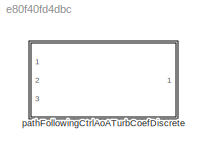
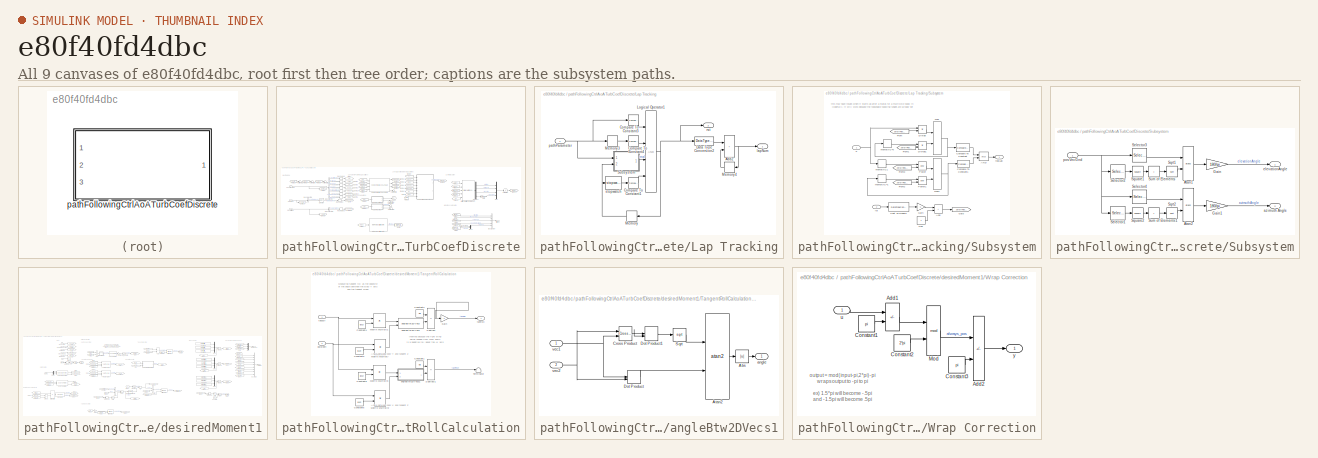
[diagram: thumbnail index - all 9 canvases of the model, root first then tree order]
MODEL slx_e80f40fd4dbc
KIND library
CONFIG AbsTol = auto
CONFIG EnableMultiTasking = off
CONFIG FixedStep = auto
CONFIG MaxStep = auto
CONFIG MinStep = auto
CONFIG RelTol = 1e-3
CONFIG SampleTimeConstraint = Unconstrained
CONFIG SolverName = VariableStepAuto
CONFIG StartTime = 0.0
CONFIG StopTime = 10.0
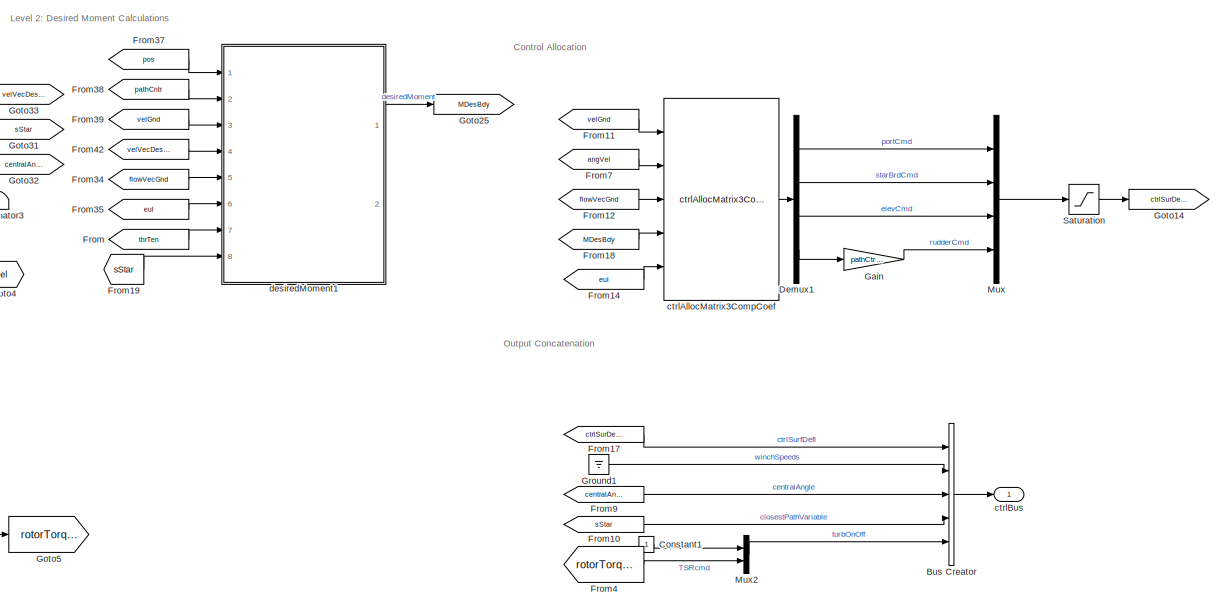
[diagram: pathFollowingCtrlAoATurbCoefDiscrete - part 1/2, right side, full height]
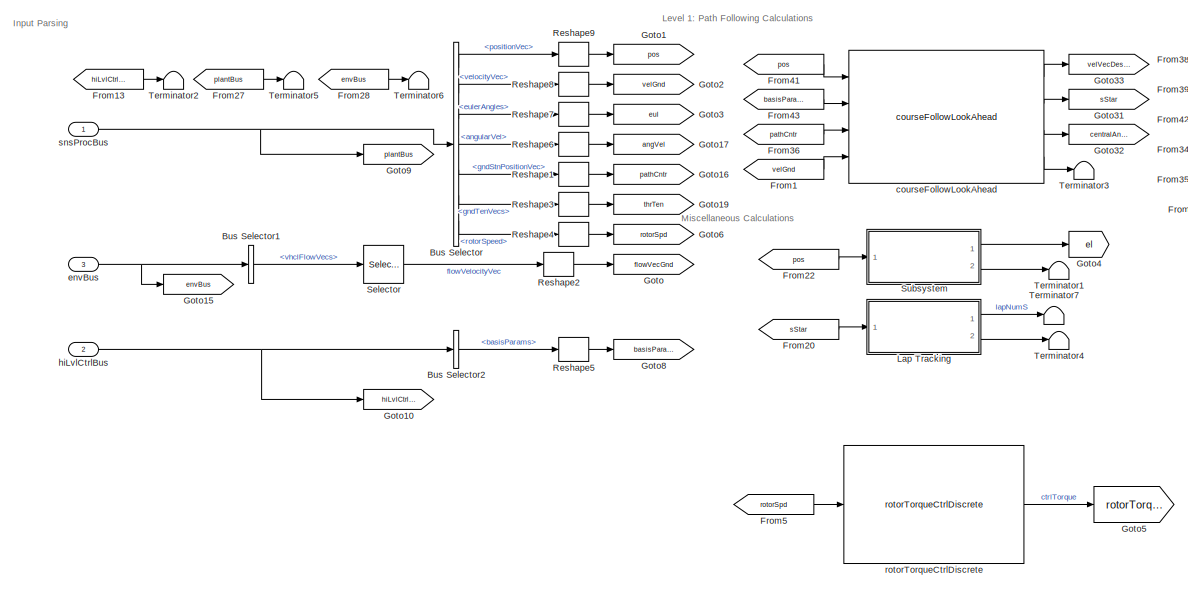
[diagram: pathFollowingCtrlAoATurbCoefDiscrete - part 2/2, left side, full height]
BLOCK [SubSystem] pathFollowingCtrlAoATurbCoefDiscrete
  InitFcn = evalin('base','pathFollowingCtrlAoATurbCoef_bc')
  LoadFcn = evalin('base','pathFollowingCtrlAoATurbCoef_bc')
  MinAlgLoopOccurrences = on
  Ports = [3, 1]
  RequestExecContextInheritance = off
  StartFcn = evalin('base','pathFollowingCtrlAoATurbCoef_bc')
  VariantControl = strcmpi(FLIGHTCONTROLLER,'pathFollowingControllerManta')
BLOCK [BusCreator] pathFollowingCtrlAoATurbCoefDiscrete/Bus Creator
  DisplayOption = bar
  InheritFromInputs = on
  Inputs = 5
  Ports = [5, 1]
BLOCK [BusSelector] pathFollowingCtrlAoATurbCoefDiscrete/Bus Selector
  OutputSignals = positionVec,velocityVec,eulerAngles,angularVel,gndStnPositionVec,gndTenVecs,rotorSpeed
  Ports = [1, 7]
BLOCK [BusSelector] pathFollowingCtrlAoATurbCoefDiscrete/Bus Selector1
  OutputSignals = vhclFlowVecs
  Ports = [1, 1]
BLOCK [BusSelector] pathFollowingCtrlAoATurbCoefDiscrete/Bus Selector2
  OutputSignals = basisParams
  Ports = [1, 1]
BLOCK [Constant] pathFollowingCtrlAoATurbCoefDiscrete/Constant1
BLOCK [Demux] pathFollowingCtrlAoATurbCoefDiscrete/Demux1
  Ports = [1, 4]
BLOCK [From] pathFollowingCtrlAoATurbCoefDiscrete/From
  GotoTag = thrTen
BLOCK [From] pathFollowingCtrlAoATurbCoefDiscrete/From1
  GotoTag = velGnd
BLOCK [From] pathFollowingCtrlAoATurbCoefDiscrete/From10
  GotoTag = sStar
BLOCK [From] pathFollowingCtrlAoATurbCoefDiscrete/From11
  GotoTag = velGnd
BLOCK [From] pathFollowingCtrlAoATurbCoefDiscrete/From12
  GotoTag = flowVecGnd
BLOCK [From] pathFollowingCtrlAoATurbCoefDiscrete/From13
  GotoTag = hiLvlCtrlBus
BLOCK [From] pathFollowingCtrlAoATurbCoefDiscrete/From14
  GotoTag = eul
BLOCK [From] pathFollowingCtrlAoATurbCoefDiscrete/From17
  GotoTag = ctrlSurDefl
BLOCK [From] pathFollowingCtrlAoATurbCoefDiscrete/From18
  GotoTag = MDesBdy
BLOCK [From] pathFollowingCtrlAoATurbCoefDiscrete/From19
  GotoTag = sStar
BLOCK [From] pathFollowingCtrlAoATurbCoefDiscrete/From20
  GotoTag = sStar
BLOCK [From] pathFollowingCtrlAoATurbCoefDiscrete/From22
  GotoTag = pos
BLOCK [From] pathFollowingCtrlAoATurbCoefDiscrete/From27
  GotoTag = plantBus
BLOCK [From] pathFollowingCtrlAoATurbCoefDiscrete/From28
  GotoTag = envBus
BLOCK [From] pathFollowingCtrlAoATurbCoefDiscrete/From34
  GotoTag = flowVecGnd
BLOCK [From] pathFollowingCtrlAoATurbCoefDiscrete/From35
  GotoTag = eul
BLOCK [From] pathFollowingCtrlAoATurbCoefDiscrete/From36
  GotoTag = pathCntr
BLOCK [From] pathFollowingCtrlAoATurbCoefDiscrete/From37
  GotoTag = pos
BLOCK [From] pathFollowingCtrlAoATurbCoefDiscrete/From38
  GotoTag = pathCntr
BLOCK [From] pathFollowingCtrlAoATurbCoefDiscrete/From39
  GotoTag = velGnd
BLOCK [From] pathFollowingCtrlAoATurbCoefDiscrete/From4
  GotoTag = rotorTorque
BLOCK [From] pathFollowingCtrlAoATurbCoefDiscrete/From41
  GotoTag = pos
BLOCK [From] pathFollowingCtrlAoATurbCoefDiscrete/From42
  GotoTag = velVecDesGnd
BLOCK [From] pathFollowingCtrlAoATurbCoefDiscrete/From43
  GotoTag = basisParams
BLOCK [From] pathFollowingCtrlAoATurbCoefDiscrete/From5
  GotoTag = rotorSpd
BLOCK [From] pathFollowingCtrlAoATurbCoefDiscrete/From7
  GotoTag = angVel
BLOCK [From] pathFollowingCtrlAoATurbCoefDiscrete/From9
  GotoTag = centralAngle
BLOCK [Gain] pathFollowingCtrlAoATurbCoefDiscrete/Gain
  Gain = pathCtrl.rudderGain.Value
BLOCK [Goto] pathFollowingCtrlAoATurbCoefDiscrete/Goto
  GotoTag = flowVecGnd
BLOCK [Goto] pathFollowingCtrlAoATurbCoefDiscrete/Goto1
  GotoTag = pos
BLOCK [Goto] pathFollowingCtrlAoATurbCoefDiscrete/Goto10
  GotoTag = hiLvlCtrlBus
BLOCK [Goto] pathFollowingCtrlAoATurbCoefDiscrete/Goto14
  GotoTag = ctrlSurDefl
BLOCK [Goto] pathFollowingCtrlAoATurbCoefDiscrete/Goto15
  GotoTag = envBus
BLOCK [Goto] pathFollowingCtrlAoATurbCoefDiscrete/Goto16
  GotoTag = pathCntr
BLOCK [Goto] pathFollowingCtrlAoATurbCoefDiscrete/Goto17
  GotoTag = angVel
BLOCK [Goto] pathFollowingCtrlAoATurbCoefDiscrete/Goto19
  GotoTag = thrTen
BLOCK [Goto] pathFollowingCtrlAoATurbCoefDiscrete/Goto2
  GotoTag = velGnd
BLOCK [Goto] pathFollowingCtrlAoATurbCoefDiscrete/Goto25
  GotoTag = MDesBdy
BLOCK [Goto] pathFollowingCtrlAoATurbCoefDiscrete/Goto3
  GotoTag = eul
BLOCK [Goto] pathFollowingCtrlAoATurbCoefDiscrete/Goto31
  GotoTag = sStar
BLOCK [Goto] pathFollowingCtrlAoATurbCoefDiscrete/Goto32
  GotoTag = centralAngle
BLOCK [Goto] pathFollowingCtrlAoATurbCoefDiscrete/Goto33
  GotoTag = velVecDesGnd
BLOCK [Goto] pathFollowingCtrlAoATurbCoefDiscrete/Goto4
  GotoTag = el
BLOCK [Goto] pathFollowingCtrlAoATurbCoefDiscrete/Goto5
  GotoTag = rotorTorque
BLOCK [Goto] pathFollowingCtrlAoATurbCoefDiscrete/Goto6
  GotoTag = rotorSpd
BLOCK [Goto] pathFollowingCtrlAoATurbCoefDiscrete/Goto8
  GotoTag = basisParams
BLOCK [Goto] pathFollowingCtrlAoATurbCoefDiscrete/Goto9
  GotoTag = plantBus
BLOCK [Ground] pathFollowingCtrlAoATurbCoefDiscrete/Ground1
BLOCK [SubSystem] pathFollowingCtrlAoATurbCoefDiscrete/Lap Tracking
  Ports = [1, 2]
  RequestExecContextInheritance = off
BLOCK [Sum] pathFollowingCtrlAoATurbCoefDiscrete/Lap Tracking/Add2
  IconShape = rectangular
  Ports = [2, 1]
BLOCK [Reference] pathFollowingCtrlAoATurbCoefDiscrete/Lap Tracking/Compare To Constant1  REF=simulink/Logic and Bit
Operations/Compare
To Constant
  Ports = [1, 1]
  SourceBlock = simulink/Logic and Bit\nOperations/Compare\nTo Constant
  SourceProductBaseCode = SL
  SourceType = Compare To Constant
BLOCK [Reference] pathFollowingCtrlAoATurbCoefDiscrete/Lap Tracking/Compare To Constant3  REF=simulink/Logic and Bit
Operations/Compare
To Constant
  Ports = [1, 1]
  SourceBlock = simulink/Logic and Bit\nOperations/Compare\nTo Constant
  SourceProductBaseCode = SL
  SourceType = Compare To Constant
BLOCK [Reference] pathFollowingCtrlAoATurbCoefDiscrete/Lap Tracking/Compare To Constant4  REF=simulink/Logic and Bit
Operations/Compare
To Constant
  Ports = [1, 1]
  SourceBlock = simulink/Logic and Bit\nOperations/Compare\nTo Constant
  SourceProductBaseCode = SL
  SourceType = Compare To Constant
BLOCK [DataTypeConversion] pathFollowingCtrlAoATurbCoefDiscrete/Lap Tracking/Data Type Conversion2
  OutDataTypeStr = double
  RndMeth = Floor
  SaturateOnIntegerOverflow = off
BLOCK [Logic] pathFollowingCtrlAoATurbCoefDiscrete/Lap Tracking/Logical Operator1
  AllPortsSameDT = off
  Inputs = 4
  OutDataTypeStr = boolean
  Ports = [4, 1]
BLOCK [Memory] pathFollowingCtrlAoATurbCoefDiscrete/Lap Tracking/Memory
  InitialCondition = false
BLOCK [Memory] pathFollowingCtrlAoATurbCoefDiscrete/Lap Tracking/Memory3
BLOCK [Memory] pathFollowingCtrlAoATurbCoefDiscrete/Lap Tracking/Memory4
BLOCK [SubSystem] pathFollowingCtrlAoATurbCoefDiscrete/Lap Tracking/Subsystem
  Ports = [2, 1]
  RequestExecContextInheritance = off
BLOCK [Logic] pathFollowingCtrlAoATurbCoefDiscrete/Lap Tracking/Subsystem/AND
  AllPortsSameDT = off
  OutDataTypeStr = boolean
  Ports = [2, 1]
BLOCK [Sum] pathFollowingCtrlAoATurbCoefDiscrete/Lap Tracking/Subsystem/Add
  IconShape = rectangular
  Ports = [2, 1]
BLOCK [DataTypeConversion] pathFollowingCtrlAoATurbCoefDiscrete/Lap Tracking/Subsystem/Cast To Double
  OutDataTypeStr = double
  RndMeth = Floor
  SaturateOnIntegerOverflow = off
BLOCK [Reference] pathFollowingCtrlAoATurbCoefDiscrete/Lap Tracking/Subsystem/Compare To Constant  REF=simulink/Logic and Bit
Operations/Compare
To Constant
  Ports = [1, 1]
  SourceBlock = simulink/Logic and Bit\nOperations/Compare\nTo Constant
  SourceProductBaseCode = SL
  SourceType = Compare To Constant
BLOCK [Reference] pathFollowingCtrlAoATurbCoefDiscrete/Lap Tracking/Subsystem/Compare To Constant1  REF=simulink/Logic and Bit
Operations/Compare
To Constant
  Ports = [1, 1]
  SourceBlock = simulink/Logic and Bit\nOperations/Compare\nTo Constant
  SourceProductBaseCode = SL
  SourceType = Compare To Constant
BLOCK [Product] pathFollowingCtrlAoATurbCoefDiscrete/Lap Tracking/Subsystem/Divide
  Inputs = **
  Ports = [2, 1]
BLOCK [Product] pathFollowingCtrlAoATurbCoefDiscrete/Lap Tracking/Subsystem/Divide1
  Inputs = **
  Ports = [2, 1]
BLOCK [From] pathFollowingCtrlAoATurbCoefDiscrete/Lap Tracking/Subsystem/From
  GotoTag = zeroIfReset
BLOCK [From] pathFollowingCtrlAoATurbCoefDiscrete/Lap Tracking/Subsystem/From1
  GotoTag = zeroIfReset
BLOCK [From] pathFollowingCtrlAoATurbCoefDiscrete/Lap Tracking/Subsystem/From2
  GotoTag = zeroIfReset
BLOCK [From] pathFollowingCtrlAoATurbCoefDiscrete/Lap Tracking/Subsystem/From3
  GotoTag = zeroIfReset
BLOCK [Gain] pathFollowingCtrlAoATurbCoefDiscrete/Lap Tracking/Subsystem/Gain
  Gain = -1
BLOCK [Goto] pathFollowingCtrlAoATurbCoefDiscrete/Lap Tracking/Subsystem/Goto
  GotoTag = zeroIfReset
BLOCK [MinMax] pathFollowingCtrlAoATurbCoefDiscrete/Lap Tracking/Subsystem/Max
  Function = max
  Inputs = 2
  Ports = [2, 1]
BLOCK [MinMax] pathFollowingCtrlAoATurbCoefDiscrete/Lap Tracking/Subsystem/Max1
  Inputs = 2
  Ports = [2, 1]
BLOCK [Constant] pathFollowingCtrlAoATurbCoefDiscrete/Lap Tracking/Subsystem/One
  OutDataTypeStr = Inherit: Inherit via back propagation
BLOCK [Math] pathFollowingCtrlAoATurbCoefDiscrete/Lap Tracking/Subsystem/Power
  Operator = pow
  Ports = [2, 1]
BLOCK [Math] pathFollowingCtrlAoATurbCoefDiscrete/Lap Tracking/Subsystem/Power1
  Operator = pow
  Ports = [2, 1]
BLOCK [Inport] pathFollowingCtrlAoATurbCoefDiscrete/Lap Tracking/Subsystem/S
BLOCK [Memory] pathFollowingCtrlAoATurbCoefDiscrete/Lap Tracking/Subsystem/memoryIC1
  InitialCondition = 1
BLOCK [Memory] pathFollowingCtrlAoATurbCoefDiscrete/Lap Tracking/Subsystem/memoryIC=0
BLOCK [Memory] pathFollowingCtrlAoATurbCoefDiscrete/Lap Tracking/Subsystem/memoryIC=1
  InitialCondition = 1
BLOCK [Outport] pathFollowingCtrlAoATurbCoefDiscrete/Lap Tracking/Subsystem/realLap
BLOCK [Inport] pathFollowingCtrlAoATurbCoefDiscrete/Lap Tracking/Subsystem/rst
  Port = 2
BLOCK [Outport] pathFollowingCtrlAoATurbCoefDiscrete/Lap Tracking/lapNum
  VectorParamsAs1DForOutWhenUnconnected = off
BLOCK [Inport] pathFollowingCtrlAoATurbCoefDiscrete/Lap Tracking/pathParameter
BLOCK [Outport] pathFollowingCtrlAoATurbCoefDiscrete/Lap Tracking/rst
  Port = 2
  VectorParamsAs1DForOutWhenUnconnected = off
BLOCK [Reference] pathFollowingCtrlAoATurbCoefDiscrete/Lap Tracking/stopwatch  REF=stopwatch_ul/stopwatch  (lib defined in slx_5231e8830116, slx_6b86a6863970)
  Ports = [1, 1]
  SourceBlock = stopwatch_ul/stopwatch
  SourceType = SubSystem
BLOCK [Mux] pathFollowingCtrlAoATurbCoefDiscrete/Mux
  DisplayOption = bar
  Ports = [4, 1]
BLOCK [Mux] pathFollowingCtrlAoATurbCoefDiscrete/Mux2
  DisplayOption = bar
  Inputs = 2
  Ports = [2, 1]
BLOCK [Reshape] pathFollowingCtrlAoATurbCoefDiscrete/Reshape1
  OutputDimensionality = Column vector (2-D)
  Ports = [1, 1]
BLOCK [Reshape] pathFollowingCtrlAoATurbCoefDiscrete/Reshape2
  OutputDimensionality = Column vector (2-D)
  Ports = [1, 1]
BLOCK [Reshape] pathFollowingCtrlAoATurbCoefDiscrete/Reshape3
  OutputDimensionality = Column vector (2-D)
  Ports = [1, 1]
BLOCK [Reshape] pathFollowingCtrlAoATurbCoefDiscrete/Reshape4
  OutputDimensionality = Column vector (2-D)
  Ports = [1, 1]
BLOCK [Reshape] pathFollowingCtrlAoATurbCoefDiscrete/Reshape5
  OutputDimensionality = Column vector (2-D)
  Ports = [1, 1]
BLOCK [Reshape] pathFollowingCtrlAoATurbCoefDiscrete/Reshape6
  OutputDimensionality = Column vector (2-D)
  Ports = [1, 1]
BLOCK [Reshape] pathFollowingCtrlAoATurbCoefDiscrete/Reshape7
  OutputDimensionality = Column vector (2-D)
  Ports = [1, 1]
BLOCK [Reshape] pathFollowingCtrlAoATurbCoefDiscrete/Reshape8
  OutputDimensionality = Column vector (2-D)
  Ports = [1, 1]
BLOCK [Reshape] pathFollowingCtrlAoATurbCoefDiscrete/Reshape9
  OutputDimensionality = Column vector (2-D)
  Ports = [1, 1]
BLOCK [Saturate] pathFollowingCtrlAoATurbCoefDiscrete/Saturation
  LowerLimit = -30
  UpperLimit = 30
BLOCK [Selector] pathFollowingCtrlAoATurbCoefDiscrete/Selector
  IndexOptions = Select all,Index vector (dialog)
  Indices = [1 3],5
  InputPortWidth = 3
  NumberOfDimensions = 2
  OutputSizes = 1,1
  Ports = [1, 1]
BLOCK [SubSystem] pathFollowingCtrlAoATurbCoefDiscrete/Subsystem
  Ports = [1, 2]
  RequestExecContextInheritance = off
BLOCK [Trigonometry] pathFollowingCtrlAoATurbCoefDiscrete/Subsystem/Atan1
  Operator = atan2
  Ports = [2, 1]
BLOCK [Trigonometry] pathFollowingCtrlAoATurbCoefDiscrete/Subsystem/Atan2
  Operator = atan2
  Ports = [2, 1]
BLOCK [Gain] pathFollowingCtrlAoATurbCoefDiscrete/Subsystem/Gain
  Gain = 180/pi
BLOCK [Gain] pathFollowingCtrlAoATurbCoefDiscrete/Subsystem/Gain1
  Gain = 180/pi
BLOCK [Selector] pathFollowingCtrlAoATurbCoefDiscrete/Subsystem/Selector1
  IndexOptions = Index vector (dialog)
  Indices = 1
  InputPortWidth = 3
  OutputSizes = 1
  Ports = [1, 1]
BLOCK [Selector] pathFollowingCtrlAoATurbCoefDiscrete/Subsystem/Selector2
  IndexOptions = Index vector (dialog)
  Indices = [1 2]
  InputPortWidth = 3
  OutputSizes = 1
  Ports = [1, 1]
BLOCK [Selector] pathFollowingCtrlAoATurbCoefDiscrete/Subsystem/Selector3
  IndexOptions = Index vector (dialog)
  Indices = 3
  InputPortWidth = 3
  OutputSizes = 1
  Ports = [1, 1]
BLOCK [Selector] pathFollowingCtrlAoATurbCoefDiscrete/Subsystem/Selector4
  IndexOptions = Index vector (dialog)
  Indices = 2
  InputPortWidth = 3
  OutputSizes = 1
  Ports = [1, 1]
BLOCK [Sqrt] pathFollowingCtrlAoATurbCoefDiscrete/Subsystem/Sqrt1
BLOCK [Sqrt] pathFollowingCtrlAoATurbCoefDiscrete/Subsystem/Sqrt2
BLOCK [Math] pathFollowingCtrlAoATurbCoefDiscrete/Subsystem/Square1
  Operator = square
  Ports = [1, 1]
  SignedPower = on
BLOCK [Math] pathFollowingCtrlAoATurbCoefDiscrete/Subsystem/Square2
  Operator = square
  Ports = [1, 1]
  SignedPower = on
BLOCK [Sum] pathFollowingCtrlAoATurbCoefDiscrete/Subsystem/Sum of Elements
  IconShape = rectangular
  Inputs = +
  Ports = [1, 1]
BLOCK [Sum] pathFollowingCtrlAoATurbCoefDiscrete/Subsystem/Sum of Elements1
  IconShape = rectangular
  Inputs = +
  Ports = [1, 1]
BLOCK [Outport] pathFollowingCtrlAoATurbCoefDiscrete/Subsystem/azimuth Angle
  Port = 2
BLOCK [Outport] pathFollowingCtrlAoATurbCoefDiscrete/Subsystem/elevationAngle
BLOCK [Inport] pathFollowingCtrlAoATurbCoefDiscrete/Subsystem/posVecGnd
BLOCK [Terminator] pathFollowingCtrlAoATurbCoefDiscrete/Terminator1
BLOCK [Terminator] pathFollowingCtrlAoATurbCoefDiscrete/Terminator2
BLOCK [Terminator] pathFollowingCtrlAoATurbCoefDiscrete/Terminator3
BLOCK [Terminator] pathFollowingCtrlAoATurbCoefDiscrete/Terminator4
BLOCK [Terminator] pathFollowingCtrlAoATurbCoefDiscrete/Terminator5
BLOCK [Terminator] pathFollowingCtrlAoATurbCoefDiscrete/Terminator6
BLOCK [Terminator] pathFollowingCtrlAoATurbCoefDiscrete/Terminator7
BLOCK [Reference] pathFollowingCtrlAoATurbCoefDiscrete/courseFollowLookAhead  REF=courseFollowLookAhead_cl/courseFollowLookAhead
  Ports = [4, 4]
  SourceBlock = courseFollowLookAhead_cl/courseFollowLookAhead
  SourceType = SubSystem
BLOCK [Reference] pathFollowingCtrlAoATurbCoefDiscrete/ctrlAllocMatrix3CompCoef  REF=ctrlAllocMatrix3CompCoef_cl/ctrlAllocMatrix3CompCoef
  Ports = [5, 1]
  SourceBlock = ctrlAllocMatrix3CompCoef_cl/ctrlAllocMatrix3CompCoef
BLOCK [Outport] pathFollowingCtrlAoATurbCoefDiscrete/ctrlBus
  OutDataTypeStr = Bus: fltCtrlBus
  VectorParamsAs1DForOutWhenUnconnected = off
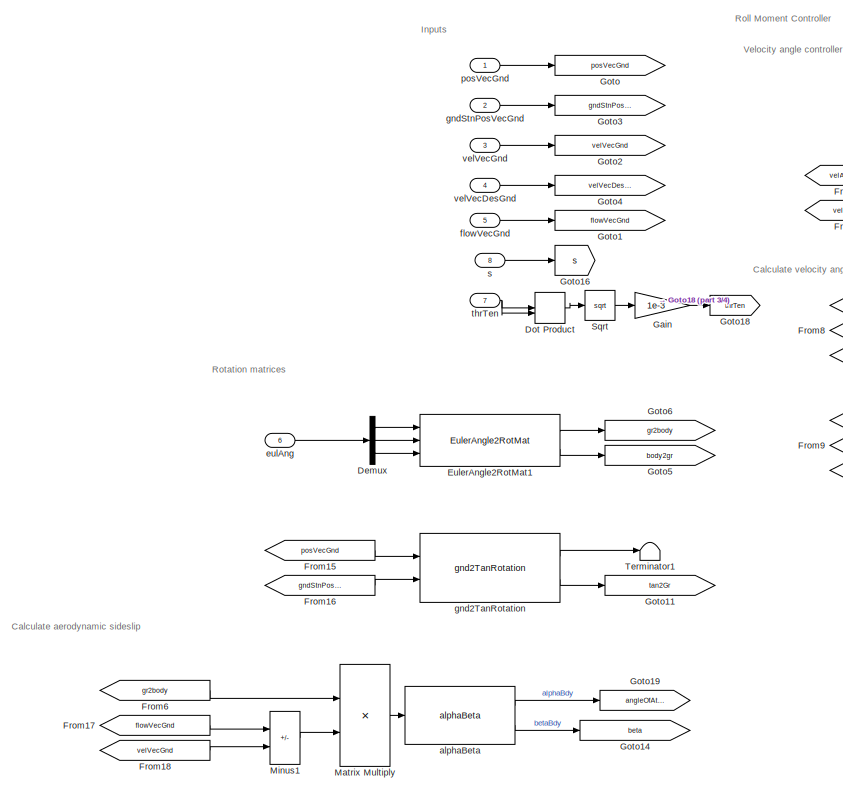
[diagram: pathFollowingCtrlAoATurbCoefDiscrete/desiredMoment1 - part 1/4, left side, full height]
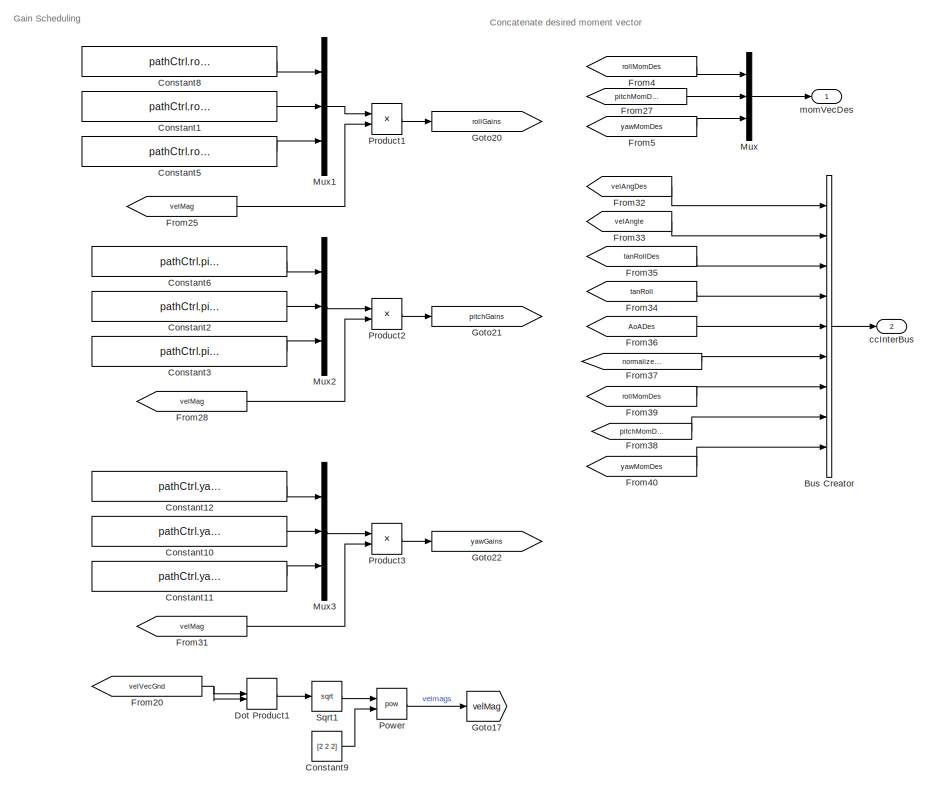
[diagram: pathFollowingCtrlAoATurbCoefDiscrete/desiredMoment1 - part 2/4, right side, full height]
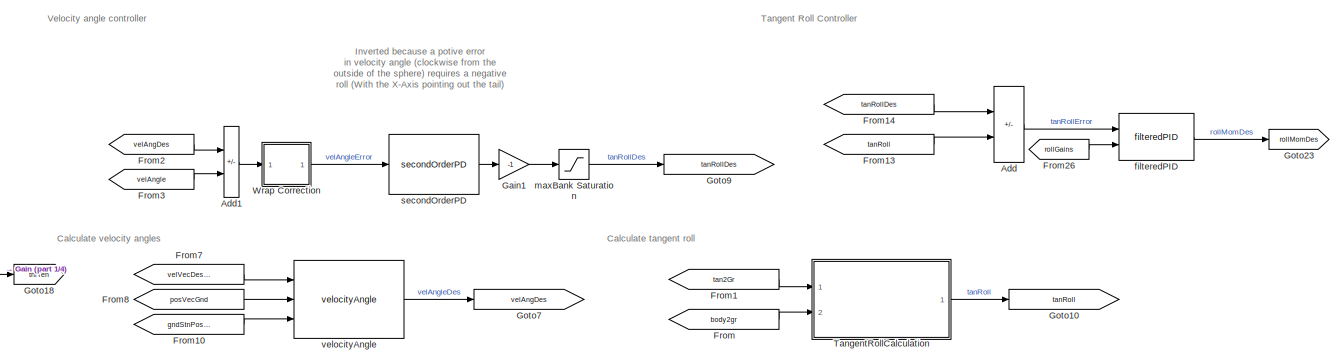
[diagram: pathFollowingCtrlAoATurbCoefDiscrete/desiredMoment1 - part 3/4, top center region]
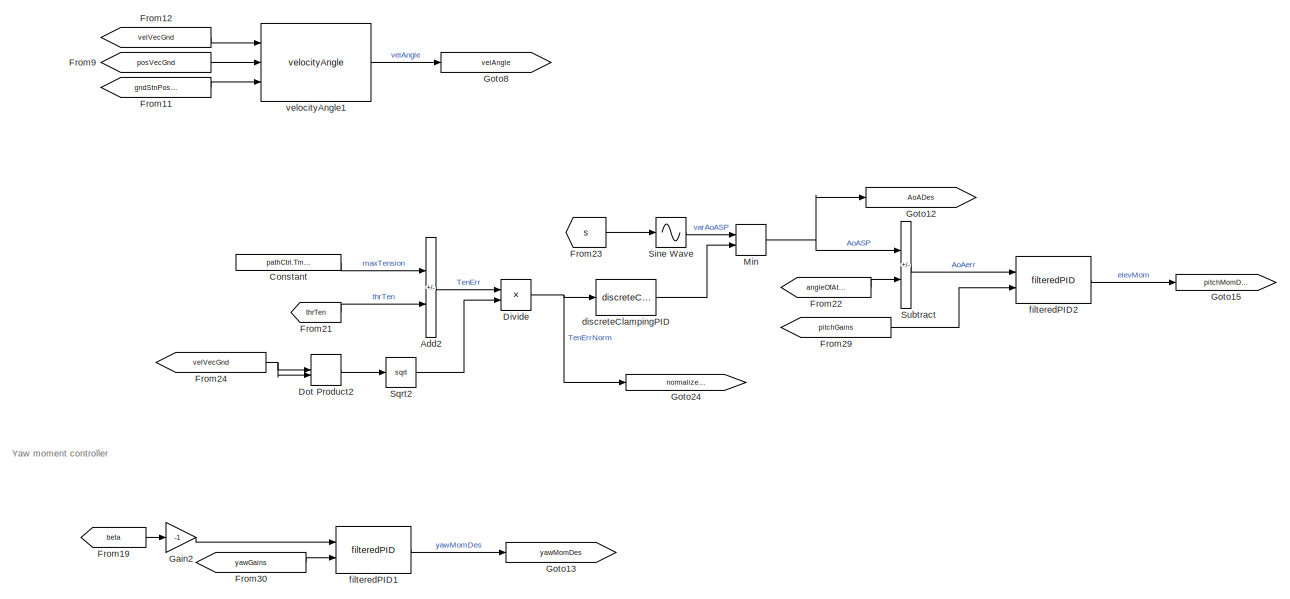
[diagram: pathFollowingCtrlAoATurbCoefDiscrete/desiredMoment1 - part 4/4, bottom center region]
BLOCK [SubSystem] pathFollowingCtrlAoATurbCoefDiscrete/desiredMoment1
  Ports = [8, 2]
  RequestExecContextInheritance = off
BLOCK [Sum] pathFollowingCtrlAoATurbCoefDiscrete/desiredMoment1/Add
  IconShape = rectangular
  Inputs = +-
  Ports = [2, 1]
BLOCK [Sum] pathFollowingCtrlAoATurbCoefDiscrete/desiredMoment1/Add1
  IconShape = rectangular
  Inputs = +-
  Ports = [2, 1]
BLOCK [Sum] pathFollowingCtrlAoATurbCoefDiscrete/desiredMoment1/Add2
  IconShape = rectangular
  Inputs = +-
  Ports = [2, 1]
BLOCK [BusCreator] pathFollowingCtrlAoATurbCoefDiscrete/desiredMoment1/Bus Creator
  DisplayOption = bar
  InheritFromInputs = on
  Inputs = 9
  Ports = [9, 1]
BLOCK [Constant] pathFollowingCtrlAoATurbCoefDiscrete/desiredMoment1/Constant
  Value = pathCtrl.Tmax.Value
BLOCK [Constant] pathFollowingCtrlAoATurbCoefDiscrete/desiredMoment1/Constant1
  Value = pathCtrl.rollMoment.ki.Value
BLOCK [Constant] pathFollowingCtrlAoATurbCoefDiscrete/desiredMoment1/Constant10
  Value = pathCtrl.yawMoment.ki.Value
BLOCK [Constant] pathFollowingCtrlAoATurbCoefDiscrete/desiredMoment1/Constant11
  Value = pathCtrl.yawMoment.kd.Value
BLOCK [Constant] pathFollowingCtrlAoATurbCoefDiscrete/desiredMoment1/Constant12
  Value = pathCtrl.yawMoment.kp.Value
BLOCK [Constant] pathFollowingCtrlAoATurbCoefDiscrete/desiredMoment1/Constant2
  Value = pathCtrl.pitchMoment.ki.Value
BLOCK [Constant] pathFollowingCtrlAoATurbCoefDiscrete/desiredMoment1/Constant3
  Value = pathCtrl.pitchMoment.kd.Value
BLOCK [Constant] pathFollowingCtrlAoATurbCoefDiscrete/desiredMoment1/Constant5
  Value = pathCtrl.rollMoment.kd.Value
BLOCK [Constant] pathFollowingCtrlAoATurbCoefDiscrete/desiredMoment1/Constant6
  Value = pathCtrl.pitchMoment.kp.Value
BLOCK [Constant] pathFollowingCtrlAoATurbCoefDiscrete/desiredMoment1/Constant8
  Value = pathCtrl.rollMoment.kp.Value
BLOCK [Constant] pathFollowingCtrlAoATurbCoefDiscrete/desiredMoment1/Constant9
  Value = [2 2 2]
BLOCK [Demux] pathFollowingCtrlAoATurbCoefDiscrete/desiredMoment1/Demux
  Outputs = 3
  Ports = [1, 3]
BLOCK [Product] pathFollowingCtrlAoATurbCoefDiscrete/desiredMoment1/Divide
  Inputs = */
  Ports = [2, 1]
BLOCK [DotProduct] pathFollowingCtrlAoATurbCoefDiscrete/desiredMoment1/Dot Product
  OutDataTypeStr = Inherit: Inherit via internal rule
BLOCK [DotProduct] pathFollowingCtrlAoATurbCoefDiscrete/desiredMoment1/Dot Product1
  OutDataTypeStr = Inherit: Inherit via internal rule
BLOCK [DotProduct] pathFollowingCtrlAoATurbCoefDiscrete/desiredMoment1/Dot Product2
  OutDataTypeStr = Inherit: Inherit via internal rule
BLOCK [Reference] pathFollowingCtrlAoATurbCoefDiscrete/desiredMoment1/EulerAngle2RotMat1  REF=eulAng2RotMat_ul/EulerAngle2RotMat
  Ports = [3, 2]
  SourceBlock = eulAng2RotMat_ul/EulerAngle2RotMat
  SourceType = SubSystem
BLOCK [From] pathFollowingCtrlAoATurbCoefDiscrete/desiredMoment1/From
  GotoTag = body2gr
BLOCK [From] pathFollowingCtrlAoATurbCoefDiscrete/desiredMoment1/From1
  GotoTag = tan2Gr
BLOCK [From] pathFollowingCtrlAoATurbCoefDiscrete/desiredMoment1/From10
  GotoTag = gndStnPosVecGnd
BLOCK [From] pathFollowingCtrlAoATurbCoefDiscrete/desiredMoment1/From11
  GotoTag = gndStnPosVecGnd
BLOCK [From] pathFollowingCtrlAoATurbCoefDiscrete/desiredMoment1/From12
  GotoTag = velVecGnd
BLOCK [From] pathFollowingCtrlAoATurbCoefDiscrete/desiredMoment1/From13
  GotoTag = tanRoll
BLOCK [From] pathFollowingCtrlAoATurbCoefDiscrete/desiredMoment1/From14
  GotoTag = tanRollDes
BLOCK [From] pathFollowingCtrlAoATurbCoefDiscrete/desiredMoment1/From15
  GotoTag = posVecGnd
BLOCK [From] pathFollowingCtrlAoATurbCoefDiscrete/desiredMoment1/From16
  GotoTag = gndStnPosVecGnd
BLOCK [From] pathFollowingCtrlAoATurbCoefDiscrete/desiredMoment1/From17
  GotoTag = flowVecGnd
BLOCK [From] pathFollowingCtrlAoATurbCoefDiscrete/desiredMoment1/From18
  GotoTag = velVecGnd
BLOCK [From] pathFollowingCtrlAoATurbCoefDiscrete/desiredMoment1/From19
  GotoTag = beta
BLOCK [From] pathFollowingCtrlAoATurbCoefDiscrete/desiredMoment1/From2
  GotoTag = velAngDes
BLOCK [From] pathFollowingCtrlAoATurbCoefDiscrete/desiredMoment1/From20
  GotoTag = velVecGnd
BLOCK [From] pathFollowingCtrlAoATurbCoefDiscrete/desiredMoment1/From21
  GotoTag = thrTen
BLOCK [From] pathFollowingCtrlAoATurbCoefDiscrete/desiredMoment1/From22
  GotoTag = angleOfAttack
BLOCK [From] pathFollowingCtrlAoATurbCoefDiscrete/desiredMoment1/From23
  GotoTag = s
BLOCK [From] pathFollowingCtrlAoATurbCoefDiscrete/desiredMoment1/From24
  GotoTag = velVecGnd
BLOCK [From] pathFollowingCtrlAoATurbCoefDiscrete/desiredMoment1/From25
  GotoTag = velMag
BLOCK [From] pathFollowingCtrlAoATurbCoefDiscrete/desiredMoment1/From26
  GotoTag = rollGains
BLOCK [From] pathFollowingCtrlAoATurbCoefDiscrete/desiredMoment1/From27
  GotoTag = pitchMomDes
BLOCK [From] pathFollowingCtrlAoATurbCoefDiscrete/desiredMoment1/From28
  GotoTag = velMag
BLOCK [From] pathFollowingCtrlAoATurbCoefDiscrete/desiredMoment1/From29
  GotoTag = pitchGains
BLOCK [From] pathFollowingCtrlAoATurbCoefDiscrete/desiredMoment1/From3
  GotoTag = velAngle
BLOCK [From] pathFollowingCtrlAoATurbCoefDiscrete/desiredMoment1/From30
  GotoTag = yawGains
BLOCK [From] pathFollowingCtrlAoATurbCoefDiscrete/desiredMoment1/From31
  GotoTag = velMag
BLOCK [From] pathFollowingCtrlAoATurbCoefDiscrete/desiredMoment1/From32
  GotoTag = velAngDes
BLOCK [From] pathFollowingCtrlAoATurbCoefDiscrete/desiredMoment1/From33
  GotoTag = velAngle
BLOCK [From] pathFollowingCtrlAoATurbCoefDiscrete/desiredMoment1/From34
  GotoTag = tanRoll
BLOCK [From] pathFollowingCtrlAoATurbCoefDiscrete/desiredMoment1/From35
  GotoTag = tanRollDes
BLOCK [From] pathFollowingCtrlAoATurbCoefDiscrete/desiredMoment1/From36
  GotoTag = AoADes
BLOCK [From] pathFollowingCtrlAoATurbCoefDiscrete/desiredMoment1/From37
  GotoTag = normalizedTensionError
BLOCK [From] pathFollowingCtrlAoATurbCoefDiscrete/desiredMoment1/From38
  GotoTag = pitchMomDes
BLOCK [From] pathFollowingCtrlAoATurbCoefDiscrete/desiredMoment1/From39
  GotoTag = rollMomDes
BLOCK [From] pathFollowingCtrlAoATurbCoefDiscrete/desiredMoment1/From4
  GotoTag = rollMomDes
BLOCK [From] pathFollowingCtrlAoATurbCoefDiscrete/desiredMoment1/From40
  GotoTag = yawMomDes
BLOCK [From] pathFollowingCtrlAoATurbCoefDiscrete/desiredMoment1/From5
  GotoTag = yawMomDes
BLOCK [From] pathFollowingCtrlAoATurbCoefDiscrete/desiredMoment1/From6
  GotoTag = gr2body
BLOCK [From] pathFollowingCtrlAoATurbCoefDiscrete/desiredMoment1/From7
  GotoTag = velVecDesGnd
BLOCK [From] pathFollowingCtrlAoATurbCoefDiscrete/desiredMoment1/From8
  GotoTag = posVecGnd
BLOCK [From] pathFollowingCtrlAoATurbCoefDiscrete/desiredMoment1/From9
  GotoTag = posVecGnd
BLOCK [Gain] pathFollowingCtrlAoATurbCoefDiscrete/desiredMoment1/Gain
  Gain = 1e-3
BLOCK [Gain] pathFollowingCtrlAoATurbCoefDiscrete/desiredMoment1/Gain1
  Gain = -1
BLOCK [Gain] pathFollowingCtrlAoATurbCoefDiscrete/desiredMoment1/Gain2
  Gain = -1
BLOCK [Goto] pathFollowingCtrlAoATurbCoefDiscrete/desiredMoment1/Goto
  GotoTag = posVecGnd
BLOCK [Goto] pathFollowingCtrlAoATurbCoefDiscrete/desiredMoment1/Goto1
  GotoTag = flowVecGnd
BLOCK [Goto] pathFollowingCtrlAoATurbCoefDiscrete/desiredMoment1/Goto10
  GotoTag = tanRoll
BLOCK [Goto] pathFollowingCtrlAoATurbCoefDiscrete/desiredMoment1/Goto11
  GotoTag = tan2Gr
BLOCK [Goto] pathFollowingCtrlAoATurbCoefDiscrete/desiredMoment1/Goto12
  GotoTag = AoADes
BLOCK [Goto] pathFollowingCtrlAoATurbCoefDiscrete/desiredMoment1/Goto13
  GotoTag = yawMomDes
BLOCK [Goto] pathFollowingCtrlAoATurbCoefDiscrete/desiredMoment1/Goto14
  GotoTag = beta
BLOCK [Goto] pathFollowingCtrlAoATurbCoefDiscrete/desiredMoment1/Goto15
  GotoTag = pitchMomDes
BLOCK [Goto] pathFollowingCtrlAoATurbCoefDiscrete/desiredMoment1/Goto16
  GotoTag = s
BLOCK [Goto] pathFollowingCtrlAoATurbCoefDiscrete/desiredMoment1/Goto17
  GotoTag = velMag
BLOCK [Goto] pathFollowingCtrlAoATurbCoefDiscrete/desiredMoment1/Goto18
  GotoTag = thrTen
BLOCK [Goto] pathFollowingCtrlAoATurbCoefDiscrete/desiredMoment1/Goto19
  GotoTag = angleOfAttack
BLOCK [Goto] pathFollowingCtrlAoATurbCoefDiscrete/desiredMoment1/Goto2
  GotoTag = velVecGnd
BLOCK [Goto] pathFollowingCtrlAoATurbCoefDiscrete/desiredMoment1/Goto20
  GotoTag = rollGains
BLOCK [Goto] pathFollowingCtrlAoATurbCoefDiscrete/desiredMoment1/Goto21
  GotoTag = pitchGains
BLOCK [Goto] pathFollowingCtrlAoATurbCoefDiscrete/desiredMoment1/Goto22
  GotoTag = yawGains
BLOCK [Goto] pathFollowingCtrlAoATurbCoefDiscrete/desiredMoment1/Goto23
  GotoTag = rollMomDes
BLOCK [Goto] pathFollowingCtrlAoATurbCoefDiscrete/desiredMoment1/Goto24
  GotoTag = normalizedTensionError
BLOCK [Goto] pathFollowingCtrlAoATurbCoefDiscrete/desiredMoment1/Goto3
  GotoTag = gndStnPosVecGnd
BLOCK [Goto] pathFollowingCtrlAoATurbCoefDiscrete/desiredMoment1/Goto4
  GotoTag = velVecDesGnd
BLOCK [Goto] pathFollowingCtrlAoATurbCoefDiscrete/desiredMoment1/Goto5
  GotoTag = body2gr
BLOCK [Goto] pathFollowingCtrlAoATurbCoefDiscrete/desiredMoment1/Goto6
  GotoTag = gr2body
BLOCK [Goto] pathFollowingCtrlAoATurbCoefDiscrete/desiredMoment1/Goto7
  GotoTag = velAngDes
BLOCK [Goto] pathFollowingCtrlAoATurbCoefDiscrete/desiredMoment1/Goto8
  GotoTag = velAngle
BLOCK [Goto] pathFollowingCtrlAoATurbCoefDiscrete/desiredMoment1/Goto9
  GotoTag = tanRollDes
BLOCK [Product] pathFollowingCtrlAoATurbCoefDiscrete/desiredMoment1/Matrix Multiply
  Multiplication = Matrix(*)
  Ports = [2, 1]
BLOCK [MinMax] pathFollowingCtrlAoATurbCoefDiscrete/desiredMoment1/Min
  Inputs = 2
  Ports = [2, 1]
BLOCK [Sum] pathFollowingCtrlAoATurbCoefDiscrete/desiredMoment1/Minus1
  IconShape = rectangular
  Inputs = +-
  Ports = [2, 1]
BLOCK [Mux] pathFollowingCtrlAoATurbCoefDiscrete/desiredMoment1/Mux
  DisplayOption = bar
  Inputs = 3
  Ports = [3, 1]
BLOCK [Mux] pathFollowingCtrlAoATurbCoefDiscrete/desiredMoment1/Mux1
  DisplayOption = bar
  Inputs = 3
  Ports = [3, 1]
BLOCK [Mux] pathFollowingCtrlAoATurbCoefDiscrete/desiredMoment1/Mux2
  DisplayOption = bar
  Inputs = 3
  Ports = [3, 1]
BLOCK [Mux] pathFollowingCtrlAoATurbCoefDiscrete/desiredMoment1/Mux3
  DisplayOption = bar
  Inputs = 3
  Ports = [3, 1]
BLOCK [Math] pathFollowingCtrlAoATurbCoefDiscrete/desiredMoment1/Power
  Operator = pow
  Ports = [2, 1]
BLOCK [Product] pathFollowingCtrlAoATurbCoefDiscrete/desiredMoment1/Product1
  Ports = [2, 1]
BLOCK [Product] pathFollowingCtrlAoATurbCoefDiscrete/desiredMoment1/Product2
  Ports = [2, 1]
BLOCK [Product] pathFollowingCtrlAoATurbCoefDiscrete/desiredMoment1/Product3
  Ports = [2, 1]
BLOCK [Sin] pathFollowingCtrlAoATurbCoefDiscrete/desiredMoment1/Sine Wave
  Amplitude = 2*pi/180
  Bias = 13*pi/180
  Frequency = 4*pi
  Phase = pi/2
  Ports = [1, 1]
  SampleTime = 0
  TimeSource = Use external signal
BLOCK [Sqrt] pathFollowingCtrlAoATurbCoefDiscrete/desiredMoment1/Sqrt
BLOCK [Sqrt] pathFollowingCtrlAoATurbCoefDiscrete/desiredMoment1/Sqrt1
BLOCK [Sqrt] pathFollowingCtrlAoATurbCoefDiscrete/desiredMoment1/Sqrt2
BLOCK [Sum] pathFollowingCtrlAoATurbCoefDiscrete/desiredMoment1/Subtract
  IconShape = rectangular
  Inputs = +-
  Ports = [2, 1]
BLOCK [SubSystem] pathFollowingCtrlAoATurbCoefDiscrete/desiredMoment1/TangentRollCalculation
  Ports = [2, 1]
  RequestExecContextInheritance = off
BLOCK [Constant] pathFollowingCtrlAoATurbCoefDiscrete/desiredMoment1/TangentRollCalculation/Constant1
  Value = pi/2
BLOCK [Constant] pathFollowingCtrlAoATurbCoefDiscrete/desiredMoment1/TangentRollCalculation/Constant2
  Value = pi/2
BLOCK [Constant] pathFollowingCtrlAoATurbCoefDiscrete/desiredMoment1/TangentRollCalculation/Constant3
  Value = [0 1 0]'
BLOCK [Constant] pathFollowingCtrlAoATurbCoefDiscrete/desiredMoment1/TangentRollCalculation/Constant4
  Value = [0 0 1]'
BLOCK [Constant] pathFollowingCtrlAoATurbCoefDiscrete/desiredMoment1/TangentRollCalculation/Constant5
  Value = [1 0 0]'
BLOCK [Constant] pathFollowingCtrlAoATurbCoefDiscrete/desiredMoment1/TangentRollCalculation/Constant6
  Value = [0 0 1]'
BLOCK [Gain] pathFollowingCtrlAoATurbCoefDiscrete/desiredMoment1/TangentRollCalculation/Gain
  Gain = -1
BLOCK [Product] pathFollowingCtrlAoATurbCoefDiscrete/desiredMoment1/TangentRollCalculation/Matrix Multiply
  Multiplication = Matrix(*)
  Ports = [2, 1]
BLOCK [Product] pathFollowingCtrlAoATurbCoefDiscrete/desiredMoment1/TangentRollCalculation/Matrix Multiply1
  Multiplication = Matrix(*)
  Ports = [2, 1]
BLOCK [Product] pathFollowingCtrlAoATurbCoefDiscrete/desiredMoment1/TangentRollCalculation/Matrix Multiply2
  Multiplication = Matrix(*)
  Ports = [2, 1]
BLOCK [Product] pathFollowingCtrlAoATurbCoefDiscrete/desiredMoment1/TangentRollCalculation/Matrix Multiply3
  Multiplication = Matrix(*)
  Ports = [2, 1]
BLOCK [Sum] pathFollowingCtrlAoATurbCoefDiscrete/desiredMoment1/TangentRollCalculation/Subtract
  IconShape = rectangular
  Inputs = +-
  Ports = [2, 1]
BLOCK [Sum] pathFollowingCtrlAoATurbCoefDiscrete/desiredMoment1/TangentRollCalculation/Subtract1
  IconShape = rectangular
  Inputs = +-
  Ports = [2, 1]
BLOCK [Terminator] pathFollowingCtrlAoATurbCoefDiscrete/desiredMoment1/TangentRollCalculation/Terminator
BLOCK [Reference] pathFollowingCtrlAoATurbCoefDiscrete/desiredMoment1/TangentRollCalculation/angleBtw2DVecs  REF=angleBtw2Vecs_ul/angleBtw2DVecs
  Ports = [2, 1]
  SourceBlock = angleBtw2Vecs_ul/angleBtw2DVecs
  SourceType = SubSystem
BLOCK [SubSystem] pathFollowingCtrlAoATurbCoefDiscrete/desiredMoment1/TangentRollCalculation/angleBtw2DVecs1
  Ports = [2, 1]
  RequestExecContextInheritance = off
BLOCK [Abs] pathFollowingCtrlAoATurbCoefDiscrete/desiredMoment1/TangentRollCalculation/angleBtw2DVecs1/Abs
  SaturateOnIntegerOverflow = off
BLOCK [Trigonometry] pathFollowingCtrlAoATurbCoefDiscrete/desiredMoment1/TangentRollCalculation/angleBtw2DVecs1/Atan2
  Operator = atan2
  Ports = [2, 1]
BLOCK [Reference] pathFollowingCtrlAoATurbCoefDiscrete/desiredMoment1/TangentRollCalculation/angleBtw2DVecs1/Cross Product  REF=vrlib/Utilities/Cross Product
  Ports = [2, 1]
  SourceBlock = vrlib/Utilities/Cross Product
  SourceProductBaseCode = SL
  SourceType = Cross Product
BLOCK [DotProduct] pathFollowingCtrlAoATurbCoefDiscrete/desiredMoment1/TangentRollCalculation/angleBtw2DVecs1/Dot Product
  OutDataTypeStr = Inherit: Inherit via internal rule
BLOCK [DotProduct] pathFollowingCtrlAoATurbCoefDiscrete/desiredMoment1/TangentRollCalculation/angleBtw2DVecs1/Dot Product1
  OutDataTypeStr = Inherit: Inherit via internal rule
BLOCK [Sqrt] pathFollowingCtrlAoATurbCoefDiscrete/desiredMoment1/TangentRollCalculation/angleBtw2DVecs1/Sqrt
BLOCK [Outport] pathFollowingCtrlAoATurbCoefDiscrete/desiredMoment1/TangentRollCalculation/angleBtw2DVecs1/angle
  VectorParamsAs1DForOutWhenUnconnected = off
BLOCK [Inport] pathFollowingCtrlAoATurbCoefDiscrete/desiredMoment1/TangentRollCalculation/angleBtw2DVecs1/vec1
BLOCK [Inport] pathFollowingCtrlAoATurbCoefDiscrete/desiredMoment1/TangentRollCalculation/angleBtw2DVecs1/vec2
  Port = 2
BLOCK [Inport] pathFollowingCtrlAoATurbCoefDiscrete/desiredMoment1/TangentRollCalculation/bdy2Inert
  Port = 2
BLOCK [Inport] pathFollowingCtrlAoATurbCoefDiscrete/desiredMoment1/TangentRollCalculation/tan2Gr
BLOCK [Outport] pathFollowingCtrlAoATurbCoefDiscrete/desiredMoment1/TangentRollCalculation/tanRoll
  VectorParamsAs1DForOutWhenUnconnected = off
BLOCK [Terminator] pathFollowingCtrlAoATurbCoefDiscrete/desiredMoment1/Terminator1
BLOCK [SubSystem] pathFollowingCtrlAoATurbCoefDiscrete/desiredMoment1/Wrap Correction
  Ports = [1, 1]
  RequestExecContextInheritance = off
BLOCK [Sum] pathFollowingCtrlAoATurbCoefDiscrete/desiredMoment1/Wrap Correction/Add1
  IconShape = rectangular
  Inputs = +-
  Ports = [2, 1]
BLOCK [Sum] pathFollowingCtrlAoATurbCoefDiscrete/desiredMoment1/Wrap Correction/Add2
  IconShape = rectangular
  Inputs = +-
  Ports = [2, 1]
BLOCK [Constant] pathFollowingCtrlAoATurbCoefDiscrete/desiredMoment1/Wrap Correction/Constant1
  Value = pi
BLOCK [Constant] pathFollowingCtrlAoATurbCoefDiscrete/desiredMoment1/Wrap Correction/Constant2
  Value = 2*pi
BLOCK [Constant] pathFollowingCtrlAoATurbCoefDiscrete/desiredMoment1/Wrap Correction/Constant3
  Value = pi
BLOCK [Math] pathFollowingCtrlAoATurbCoefDiscrete/desiredMoment1/Wrap Correction/Mod
  Operator = mod
  Ports = [2, 1]
  SignedPower = on
BLOCK [Inport] pathFollowingCtrlAoATurbCoefDiscrete/desiredMoment1/Wrap Correction/u
BLOCK [Outport] pathFollowingCtrlAoATurbCoefDiscrete/desiredMoment1/Wrap Correction/y
  VectorParamsAs1DForOutWhenUnconnected = off
BLOCK [Reference] pathFollowingCtrlAoATurbCoefDiscrete/desiredMoment1/alphaBeta  REF=alphaBeta_ul/alphaBeta
  Ports = [1, 2]
  SourceBlock = alphaBeta_ul/alphaBeta
  SourceType = SubSystem
BLOCK [Outport] pathFollowingCtrlAoATurbCoefDiscrete/desiredMoment1/ccInterBus
  Port = 2
BLOCK [Reference] pathFollowingCtrlAoATurbCoefDiscrete/desiredMoment1/discreteClampingPID  REF=discreteClampingPID/discreteClampingPID
  Ports = [1, 1]
  SourceBlock = discreteClampingPID/discreteClampingPID
BLOCK [Inport] pathFollowingCtrlAoATurbCoefDiscrete/desiredMoment1/eulAng
  Port = 6
BLOCK [Reference] pathFollowingCtrlAoATurbCoefDiscrete/desiredMoment1/filteredPID  REF=discreteGainScheduledFilteredPID/filteredPID
  Ports = [2, 1]
  SourceBlock = discreteGainScheduledFilteredPID/filteredPID
BLOCK [Reference] pathFollowingCtrlAoATurbCoefDiscrete/desiredMoment1/filteredPID1  REF=discreteGainScheduledFilteredPID/filteredPID
  Ports = [2, 1]
  SourceBlock = discreteGainScheduledFilteredPID/filteredPID
BLOCK [Reference] pathFollowingCtrlAoATurbCoefDiscrete/desiredMoment1/filteredPID2  REF=discreteGainScheduledFilteredPID/filteredPID
  Ports = [2, 1]
  SourceBlock = discreteGainScheduledFilteredPID/filteredPID
BLOCK [Inport] pathFollowingCtrlAoATurbCoefDiscrete/desiredMoment1/flowVecGnd
  Port = 5
BLOCK [Reference] pathFollowingCtrlAoATurbCoefDiscrete/desiredMoment1/gnd2TanRotation  REF=gnd2TanRotation_ul/gnd2TanRotation
  Ports = [2, 2]
  SourceBlock = gnd2TanRotation_ul/gnd2TanRotation
  SourceType = SubSystem
BLOCK [Inport] pathFollowingCtrlAoATurbCoefDiscrete/desiredMoment1/gndStnPosVecGnd
  Port = 2
BLOCK [Saturate] pathFollowingCtrlAoATurbCoefDiscrete/desiredMoment1/maxBank Saturation
  LowerLimit = pathCtrl.maxBank.lowerLimit.Value
  UpperLimit = pathCtrl.maxBank.upperLimit.Value
BLOCK [Outport] pathFollowingCtrlAoATurbCoefDiscrete/desiredMoment1/momVecDes
  VectorParamsAs1DForOutWhenUnconnected = off
BLOCK [Inport] pathFollowingCtrlAoATurbCoefDiscrete/desiredMoment1/posVecGnd
BLOCK [Inport] pathFollowingCtrlAoATurbCoefDiscrete/desiredMoment1/s
  Port = 8
BLOCK [Reference] pathFollowingCtrlAoATurbCoefDiscrete/desiredMoment1/secondOrderPD  REF=discreteSecondOrderPD_cl/secondOrderPD
  Ports = [1, 1]
  SourceBlock = discreteSecondOrderPD_cl/secondOrderPD
BLOCK [Inport] pathFollowingCtrlAoATurbCoefDiscrete/desiredMoment1/thrTen
  Port = 7
BLOCK [Inport] pathFollowingCtrlAoATurbCoefDiscrete/desiredMoment1/velVecDesGnd
  Port = 4
BLOCK [Inport] pathFollowingCtrlAoATurbCoefDiscrete/desiredMoment1/velVecGnd
  Port = 3
BLOCK [Reference] pathFollowingCtrlAoATurbCoefDiscrete/desiredMoment1/velocityAngle  REF=velocityAngle_ul/velocityAngle
  Ports = [3, 1]
  SourceBlock = velocityAngle_ul/velocityAngle
  SourceType = SubSystem
BLOCK [Reference] pathFollowingCtrlAoATurbCoefDiscrete/desiredMoment1/velocityAngle1  REF=velocityAngle_ul/velocityAngle
  Ports = [3, 1]
  SourceBlock = velocityAngle_ul/velocityAngle
  SourceType = SubSystem
BLOCK [Inport] pathFollowingCtrlAoATurbCoefDiscrete/envBus
  OutDataTypeStr = Bus: envBus
  Port = 3
BLOCK [Inport] pathFollowingCtrlAoATurbCoefDiscrete/hiLvlCtrlBus
  Port = 2
BLOCK [Reference] pathFollowingCtrlAoATurbCoefDiscrete/rotorTorqueCtrlDiscrete  REF=rotorTorqueCtrlDiscrete/rotorTorqueCtrlDiscrete
  Ports = [1, 1]
  SourceBlock = rotorTorqueCtrlDiscrete/rotorTorqueCtrlDiscrete
BLOCK [Inport] pathFollowingCtrlAoATurbCoefDiscrete/snsProcBus
  OutDataTypeStr = Bus: sensorsProcessingBus
ANNOTATION pathFollowingCtrlAoATurbCoefDiscrete: Control Allocation
ANNOTATION pathFollowingCtrlAoATurbCoefDiscrete: Input Parsing
ANNOTATION pathFollowingCtrlAoATurbCoefDiscrete: Level 1: Path Following Calculations
ANNOTATION pathFollowingCtrlAoATurbCoefDiscrete: Level 2: Desired Moment Calculations
ANNOTATION pathFollowingCtrlAoATurbCoefDiscrete: Miscellaneous Calculations
ANNOTATION pathFollowingCtrlAoATurbCoefDiscrete: Output Concatenation
ANNOTATION pathFollowingCtrlAoATurbCoefDiscrete/Lap Tracking/Subsystem: this may have issues when it starts up after a hiatus for a multicycle spool in Hopefully, it will work because the reasonable spooling ranges are already set
ANNOTATION pathFollowingCtrlAoATurbCoefDiscrete/desiredMoment1: Calculate aerodynamic sideslip
ANNOTATION pathFollowingCtrlAoATurbCoefDiscrete/desiredMoment1: Calculate tangent roll
ANNOTATION pathFollowingCtrlAoATurbCoefDiscrete/desiredMoment1: Calculate velocity angles
ANNOTATION pathFollowingCtrlAoATurbCoefDiscrete/desiredMoment1: Concatenate desired moment vector
ANNOTATION pathFollowingCtrlAoATurbCoefDiscrete/desiredMoment1: Gain Scheduling
ANNOTATION pathFollowingCtrlAoATurbCoefDiscrete/desiredMoment1: Inputs
ANNOTATION pathFollowingCtrlAoATurbCoefDiscrete/desiredMoment1: Inverted because a potive error in velocity angle (clockwise from the outside of the sphere) requires a negative roll (With the X-Axis pointing out the tail)
ANNOTATION pathFollowingCtrlAoATurbCoefDiscrete/desiredMoment1: Roll Moment Controller
ANNOTATION pathFollowingCtrlAoATurbCoefDiscrete/desiredMoment1: Rotation matrices
ANNOTATION pathFollowingCtrlAoATurbCoefDiscrete/desiredMoment1: Tangent Roll Controller
ANNOTATION pathFollowingCtrlAoATurbCoefDiscrete/desiredMoment1: Velocity angle controller
ANNOTATION pathFollowingCtrlAoATurbCoefDiscrete/desiredMoment1: Yaw moment controller
ANNOTATION pathFollowingCtrlAoATurbCoefDiscrete/desiredMoment1/TangentRollCalculation: Measuring tangent roll as the opposite of the angle between the Body Y axis and the tangent plane
ANNOTATION pathFollowingCtrlAoATurbCoefDiscrete/desiredMoment1/TangentRollCalculation: Angle between body X and tangent Z
ANNOTATION pathFollowingCtrlAoATurbCoefDiscrete/desiredMoment1/TangentRollCalculation: Angle between body Y and tangent Z
ANNOTATION pathFollowingCtrlAoATurbCoefDiscrete/desiredMoment1/TangentRollCalculation: Inverted because the right wing being <90deg from Local down is a negative roll about the +X axis
ANNOTATION pathFollowingCtrlAoATurbCoefDiscrete/desiredMoment1/Wrap Correction: output = mod(input-pi,2*pi)-pi wraps output to -pi to pi ex) 1.5*pi will become -.5pi and -1.5pi will become .5pi to visualize, plot the fuction above
LINE pathFollowingCtrlAoATurbCoefDiscrete/Bus Creator:1 -> pathFollowingCtrlAoATurbCoefDiscrete/ctrlBus:1
LINE pathFollowingCtrlAoATurbCoefDiscrete/Bus Selector1:1 -> pathFollowingCtrlAoATurbCoefDiscrete/Selector:1
LINE pathFollowingCtrlAoATurbCoefDiscrete/Bus Selector2:1 -> pathFollowingCtrlAoATurbCoefDiscrete/Reshape5:1
LINE pathFollowingCtrlAoATurbCoefDiscrete/Bus Selector:1 -> pathFollowingCtrlAoATurbCoefDiscrete/Reshape9:1
LINE pathFollowingCtrlAoATurbCoefDiscrete/Bus Selector:2 -> pathFollowingCtrlAoATurbCoefDiscrete/Reshape8:1
LINE pathFollowingCtrlAoATurbCoefDiscrete/Bus Selector:3 -> pathFollowingCtrlAoATurbCoefDiscrete/Reshape7:1
LINE pathFollowingCtrlAoATurbCoefDiscrete/Bus Selector:4 -> pathFollowingCtrlAoATurbCoefDiscrete/Reshape6:1
LINE pathFollowingCtrlAoATurbCoefDiscrete/Bus Selector:5 -> pathFollowingCtrlAoATurbCoefDiscrete/Reshape1:1
LINE pathFollowingCtrlAoATurbCoefDiscrete/Bus Selector:6 -> pathFollowingCtrlAoATurbCoefDiscrete/Reshape3:1
LINE pathFollowingCtrlAoATurbCoefDiscrete/Bus Selector:7 -> pathFollowingCtrlAoATurbCoefDiscrete/Reshape4:1
LINE pathFollowingCtrlAoATurbCoefDiscrete/Constant1:1 -> pathFollowingCtrlAoATurbCoefDiscrete/Mux2:1
LINE pathFollowingCtrlAoATurbCoefDiscrete/Demux1:1 -> pathFollowingCtrlAoATurbCoefDiscrete/Mux:1
LINE pathFollowingCtrlAoATurbCoefDiscrete/Demux1:2 -> pathFollowingCtrlAoATurbCoefDiscrete/Mux:2
LINE pathFollowingCtrlAoATurbCoefDiscrete/Demux1:3 -> pathFollowingCtrlAoATurbCoefDiscrete/Mux:3
LINE pathFollowingCtrlAoATurbCoefDiscrete/Demux1:4 -> pathFollowingCtrlAoATurbCoefDiscrete/Gain:1
LINE pathFollowingCtrlAoATurbCoefDiscrete/From10:1 -> pathFollowingCtrlAoATurbCoefDiscrete/Bus Creator:4
LINE pathFollowingCtrlAoATurbCoefDiscrete/From11:1 -> pathFollowingCtrlAoATurbCoefDiscrete/ctrlAllocMatrix3CompCoef:1
LINE pathFollowingCtrlAoATurbCoefDiscrete/From12:1 -> pathFollowingCtrlAoATurbCoefDiscrete/ctrlAllocMatrix3CompCoef:3
LINE pathFollowingCtrlAoATurbCoefDiscrete/From13:1 -> pathFollowingCtrlAoATurbCoefDiscrete/Terminator2:1
LINE pathFollowingCtrlAoATurbCoefDiscrete/From14:1 -> pathFollowingCtrlAoATurbCoefDiscrete/ctrlAllocMatrix3CompCoef:5
LINE pathFollowingCtrlAoATurbCoefDiscrete/From17:1 -> pathFollowingCtrlAoATurbCoefDiscrete/Bus Creator:1
LINE pathFollowingCtrlAoATurbCoefDiscrete/From18:1 -> pathFollowingCtrlAoATurbCoefDiscrete/ctrlAllocMatrix3CompCoef:4
LINE pathFollowingCtrlAoATurbCoefDiscrete/From19:1 -> pathFollowingCtrlAoATurbCoefDiscrete/desiredMoment1:8
LINE pathFollowingCtrlAoATurbCoefDiscrete/From1:1 -> pathFollowingCtrlAoATurbCoefDiscrete/courseFollowLookAhead:4
LINE pathFollowingCtrlAoATurbCoefDiscrete/From20:1 -> pathFollowingCtrlAoATurbCoefDiscrete/Lap Tracking:1
LINE pathFollowingCtrlAoATurbCoefDiscrete/From22:1 -> pathFollowingCtrlAoATurbCoefDiscrete/Subsystem:1
LINE pathFollowingCtrlAoATurbCoefDiscrete/From27:1 -> pathFollowingCtrlAoATurbCoefDiscrete/Terminator5:1
LINE pathFollowingCtrlAoATurbCoefDiscrete/From28:1 -> pathFollowingCtrlAoATurbCoefDiscrete/Terminator6:1
LINE pathFollowingCtrlAoATurbCoefDiscrete/From34:1 -> pathFollowingCtrlAoATurbCoefDiscrete/desiredMoment1:5
LINE pathFollowingCtrlAoATurbCoefDiscrete/From35:1 -> pathFollowingCtrlAoATurbCoefDiscrete/desiredMoment1:6
LINE pathFollowingCtrlAoATurbCoefDiscrete/From36:1 -> pathFollowingCtrlAoATurbCoefDiscrete/courseFollowLookAhead:3
LINE pathFollowingCtrlAoATurbCoefDiscrete/From37:1 -> pathFollowingCtrlAoATurbCoefDiscrete/desiredMoment1:1
LINE pathFollowingCtrlAoATurbCoefDiscrete/From38:1 -> pathFollowingCtrlAoATurbCoefDiscrete/desiredMoment1:2
LINE pathFollowingCtrlAoATurbCoefDiscrete/From39:1 -> pathFollowingCtrlAoATurbCoefDiscrete/desiredMoment1:3
LINE pathFollowingCtrlAoATurbCoefDiscrete/From41:1 -> pathFollowingCtrlAoATurbCoefDiscrete/courseFollowLookAhead:1
LINE pathFollowingCtrlAoATurbCoefDiscrete/From42:1 -> pathFollowingCtrlAoATurbCoefDiscrete/desiredMoment1:4
LINE pathFollowingCtrlAoATurbCoefDiscrete/From43:1 -> pathFollowingCtrlAoATurbCoefDiscrete/courseFollowLookAhead:2
LINE pathFollowingCtrlAoATurbCoefDiscrete/From4:1 -> pathFollowingCtrlAoATurbCoefDiscrete/Mux2:2
LINE pathFollowingCtrlAoATurbCoefDiscrete/From5:1 -> pathFollowingCtrlAoATurbCoefDiscrete/rotorTorqueCtrlDiscrete:1
LINE pathFollowingCtrlAoATurbCoefDiscrete/From7:1 -> pathFollowingCtrlAoATurbCoefDiscrete/ctrlAllocMatrix3CompCoef:2
LINE pathFollowingCtrlAoATurbCoefDiscrete/From9:1 -> pathFollowingCtrlAoATurbCoefDiscrete/Bus Creator:3
LINE pathFollowingCtrlAoATurbCoefDiscrete/From:1 -> pathFollowingCtrlAoATurbCoefDiscrete/desiredMoment1:7
LINE pathFollowingCtrlAoATurbCoefDiscrete/Gain:1 -> pathFollowingCtrlAoATurbCoefDiscrete/Mux:4
LINE pathFollowingCtrlAoATurbCoefDiscrete/Ground1:1 -> pathFollowingCtrlAoATurbCoefDiscrete/Bus Creator:2
NET pathFollowingCtrlAoATurbCoefDiscrete/Lap Tracking/Add2:1 -> pathFollowingCtrlAoATurbCoefDiscrete/Lap Tracking/Memory4:1, pathFollowingCtrlAoATurbCoefDiscrete/Lap Tracking/lapNum:1
LINE pathFollowingCtrlAoATurbCoefDiscrete/Lap Tracking/Compare To Constant1:1 -> pathFollowingCtrlAoATurbCoefDiscrete/Lap Tracking/Logical Operator1:4
LINE pathFollowingCtrlAoATurbCoefDiscrete/Lap Tracking/Compare To Constant3:1 -> pathFollowingCtrlAoATurbCoefDiscrete/Lap Tracking/Logical Operator1:1
LINE pathFollowingCtrlAoATurbCoefDiscrete/Lap Tracking/Compare To Constant4:1 -> pathFollowingCtrlAoATurbCoefDiscrete/Lap Tracking/Logical Operator1:2
LINE pathFollowingCtrlAoATurbCoefDiscrete/Lap Tracking/Data Type Conversion2:1 -> pathFollowingCtrlAoATurbCoefDiscrete/Lap Tracking/Add2:1
NET pathFollowingCtrlAoATurbCoefDiscrete/Lap Tracking/Logical Operator1:1 -> pathFollowingCtrlAoATurbCoefDiscrete/Lap Tracking/Data Type Conversion2:1, pathFollowingCtrlAoATurbCoefDiscrete/Lap Tracking/Memory:1, pathFollowingCtrlAoATurbCoefDiscrete/Lap Tracking/rst:1
LINE pathFollowingCtrlAoATurbCoefDiscrete/Lap Tracking/Memory3:1 -> pathFollowingCtrlAoATurbCoefDiscrete/Lap Tracking/Compare To Constant4:1
LINE pathFollowingCtrlAoATurbCoefDiscrete/Lap Tracking/Memory4:1 -> pathFollowingCtrlAoATurbCoefDiscrete/Lap Tracking/Add2:2
NET pathFollowingCtrlAoATurbCoefDiscrete/Lap Tracking/Memory:1 -> pathFollowingCtrlAoATurbCoefDiscrete/Lap Tracking/Subsystem:2, pathFollowingCtrlAoATurbCoefDiscrete/Lap Tracking/stopwatch:1
LINE pathFollowingCtrlAoATurbCoefDiscrete/Lap Tracking/Subsystem/AND:1 -> pathFollowingCtrlAoATurbCoefDiscrete/Lap Tracking/Subsystem/realLap:1
LINE pathFollowingCtrlAoATurbCoefDiscrete/Lap Tracking/Subsystem/Add:1 -> pathFollowingCtrlAoATurbCoefDiscrete/Lap Tracking/Subsystem/Goto:1
LINE pathFollowingCtrlAoATurbCoefDiscrete/Lap Tracking/Subsystem/Cast To Double:1 -> pathFollowingCtrlAoATurbCoefDiscrete/Lap Tracking/Subsystem/Gain:1
LINE pathFollowingCtrlAoATurbCoefDiscrete/Lap Tracking/Subsystem/Compare To Constant1:1 -> pathFollowingCtrlAoATurbCoefDiscrete/Lap Tracking/Subsystem/AND:2
LINE pathFollowingCtrlAoATurbCoefDiscrete/Lap Tracking/Subsystem/Compare To Constant:1 -> pathFollowingCtrlAoATurbCoefDiscrete/Lap Tracking/Subsystem/AND:1
LINE pathFollowingCtrlAoATurbCoefDiscrete/Lap Tracking/Subsystem/Divide1:1 -> pathFollowingCtrlAoATurbCoefDiscrete/Lap Tracking/Subsystem/Max:2
LINE pathFollowingCtrlAoATurbCoefDiscrete/Lap Tracking/Subsystem/Divide:1 -> pathFollowingCtrlAoATurbCoefDiscrete/Lap Tracking/Subsystem/Max:1
LINE pathFollowingCtrlAoATurbCoefDiscrete/Lap Tracking/Subsystem/From1:1 -> pathFollowingCtrlAoATurbCoefDiscrete/Lap Tracking/Subsystem/Divide1:2
LINE pathFollowingCtrlAoATurbCoefDiscrete/Lap Tracking/Subsystem/From2:1 -> pathFollowingCtrlAoATurbCoefDiscrete/Lap Tracking/Subsystem/Power1:2
LINE pathFollowingCtrlAoATurbCoefDiscrete/Lap Tracking/Subsystem/From3:1 -> pathFollowingCtrlAoATurbCoefDiscrete/Lap Tracking/Subsystem/Power:2
LINE pathFollowingCtrlAoATurbCoefDiscrete/Lap Tracking/Subsystem/From:1 -> pathFollowingCtrlAoATurbCoefDiscrete/Lap Tracking/Subsystem/Divide:2
LINE pathFollowingCtrlAoATurbCoefDiscrete/Lap Tracking/Subsystem/Gain:1 -> pathFollowingCtrlAoATurbCoefDiscrete/Lap Tracking/Subsystem/Add:1
NET pathFollowingCtrlAoATurbCoefDiscrete/Lap Tracking/Subsystem/Max1:1 -> pathFollowingCtrlAoATurbCoefDiscrete/Lap Tracking/Subsystem/Compare To Constant1:1, pathFollowingCtrlAoATurbCoefDiscrete/Lap Tracking/Subsystem/memoryIC=1:1
NET pathFollowingCtrlAoATurbCoefDiscrete/Lap Tracking/Subsystem/Max:1 -> pathFollowingCtrlAoATurbCoefDiscrete/Lap Tracking/Subsystem/Compare To Constant:1, pathFollowingCtrlAoATurbCoefDiscrete/Lap Tracking/Subsystem/memoryIC=0:1
LINE pathFollowingCtrlAoATurbCoefDiscrete/Lap Tracking/Subsystem/One:1 -> pathFollowingCtrlAoATurbCoefDiscrete/Lap Tracking/Subsystem/Add:2
LINE pathFollowingCtrlAoATurbCoefDiscrete/Lap Tracking/Subsystem/Power1:1 -> pathFollowingCtrlAoATurbCoefDiscrete/Lap Tracking/Subsystem/Max1:2
LINE pathFollowingCtrlAoATurbCoefDiscrete/Lap Tracking/Subsystem/Power:1 -> pathFollowingCtrlAoATurbCoefDiscrete/Lap Tracking/Subsystem/Max1:1
NET pathFollowingCtrlAoATurbCoefDiscrete/Lap Tracking/Subsystem/S:1 -> pathFollowingCtrlAoATurbCoefDiscrete/Lap Tracking/Subsystem/Divide:1, pathFollowingCtrlAoATurbCoefDiscrete/Lap Tracking/Subsystem/memoryIC1:1
LINE pathFollowingCtrlAoATurbCoefDiscrete/Lap Tracking/Subsystem/memoryIC1:1 -> pathFollowingCtrlAoATurbCoefDiscrete/Lap Tracking/Subsystem/Power:1
LINE pathFollowingCtrlAoATurbCoefDiscrete/Lap Tracking/Subsystem/memoryIC=0:1 -> pathFollowingCtrlAoATurbCoefDiscrete/Lap Tracking/Subsystem/Divide1:1
LINE pathFollowingCtrlAoATurbCoefDiscrete/Lap Tracking/Subsystem/memoryIC=1:1 -> pathFollowingCtrlAoATurbCoefDiscrete/Lap Tracking/Subsystem/Power1:1
LINE pathFollowingCtrlAoATurbCoefDiscrete/Lap Tracking/Subsystem/rst:1 -> pathFollowingCtrlAoATurbCoefDiscrete/Lap Tracking/Subsystem/Cast To Double:1
LINE pathFollowingCtrlAoATurbCoefDiscrete/Lap Tracking/Subsystem:1 -> pathFollowingCtrlAoATurbCoefDiscrete/Lap Tracking/Logical Operator1:3
NET pathFollowingCtrlAoATurbCoefDiscrete/Lap Tracking/pathParameter:1 -> pathFollowingCtrlAoATurbCoefDiscrete/Lap Tracking/Compare To Constant3:1, pathFollowingCtrlAoATurbCoefDiscrete/Lap Tracking/Memory3:1, pathFollowingCtrlAoATurbCoefDiscrete/Lap Tracking/Subsystem:1
LINE pathFollowingCtrlAoATurbCoefDiscrete/Lap Tracking/stopwatch:1 -> pathFollowingCtrlAoATurbCoefDiscrete/Lap Tracking/Compare To Constant1:1
LINE pathFollowingCtrlAoATurbCoefDiscrete/Lap Tracking:1 -> pathFollowingCtrlAoATurbCoefDiscrete/Terminator7:1
LINE pathFollowingCtrlAoATurbCoefDiscrete/Lap Tracking:2 -> pathFollowingCtrlAoATurbCoefDiscrete/Terminator4:1
LINE pathFollowingCtrlAoATurbCoefDiscrete/Mux2:1 -> pathFollowingCtrlAoATurbCoefDiscrete/Bus Creator:5
LINE pathFollowingCtrlAoATurbCoefDiscrete/Mux:1 -> pathFollowingCtrlAoATurbCoefDiscrete/Saturation:1
LINE pathFollowingCtrlAoATurbCoefDiscrete/Reshape1:1 -> pathFollowingCtrlAoATurbCoefDiscrete/Goto16:1
LINE pathFollowingCtrlAoATurbCoefDiscrete/Reshape2:1 -> pathFollowingCtrlAoATurbCoefDiscrete/Goto:1
LINE pathFollowingCtrlAoATurbCoefDiscrete/Reshape3:1 -> pathFollowingCtrlAoATurbCoefDiscrete/Goto19:1
LINE pathFollowingCtrlAoATurbCoefDiscrete/Reshape4:1 -> pathFollowingCtrlAoATurbCoefDiscrete/Goto6:1
LINE pathFollowingCtrlAoATurbCoefDiscrete/Reshape5:1 -> pathFollowingCtrlAoATurbCoefDiscrete/Goto8:1
LINE pathFollowingCtrlAoATurbCoefDiscrete/Reshape6:1 -> pathFollowingCtrlAoATurbCoefDiscrete/Goto17:1
LINE pathFollowingCtrlAoATurbCoefDiscrete/Reshape7:1 -> pathFollowingCtrlAoATurbCoefDiscrete/Goto3:1
LINE pathFollowingCtrlAoATurbCoefDiscrete/Reshape8:1 -> pathFollowingCtrlAoATurbCoefDiscrete/Goto2:1
LINE pathFollowingCtrlAoATurbCoefDiscrete/Reshape9:1 -> pathFollowingCtrlAoATurbCoefDiscrete/Goto1:1
LINE pathFollowingCtrlAoATurbCoefDiscrete/Saturation:1 -> pathFollowingCtrlAoATurbCoefDiscrete/Goto14:1
LINE pathFollowingCtrlAoATurbCoefDiscrete/Selector:1 -> pathFollowingCtrlAoATurbCoefDiscrete/Reshape2:1
LINE pathFollowingCtrlAoATurbCoefDiscrete/Subsystem/Atan1:1 -> pathFollowingCtrlAoATurbCoefDiscrete/Subsystem/Gain:1
LINE pathFollowingCtrlAoATurbCoefDiscrete/Subsystem/Atan2:1 -> pathFollowingCtrlAoATurbCoefDiscrete/Subsystem/Gain1:1
LINE pathFollowingCtrlAoATurbCoefDiscrete/Subsystem/Gain1:1 -> pathFollowingCtrlAoATurbCoefDiscrete/Subsystem/azimuth Angle:1
LINE pathFollowingCtrlAoATurbCoefDiscrete/Subsystem/Gain:1 -> pathFollowingCtrlAoATurbCoefDiscrete/Subsystem/elevationAngle:1
LINE pathFollowingCtrlAoATurbCoefDiscrete/Subsystem/Selector1:1 -> pathFollowingCtrlAoATurbCoefDiscrete/Subsystem/Square2:1
LINE pathFollowingCtrlAoATurbCoefDiscrete/Subsystem/Selector2:1 -> pathFollowingCtrlAoATurbCoefDiscrete/Subsystem/Square1:1
LINE pathFollowingCtrlAoATurbCoefDiscrete/Subsystem/Selector3:1 -> pathFollowingCtrlAoATurbCoefDiscrete/Subsystem/Atan1:1
LINE pathFollowingCtrlAoATurbCoefDiscrete/Subsystem/Selector4:1 -> pathFollowingCtrlAoATurbCoefDiscrete/Subsystem/Atan2:1
LINE pathFollowingCtrlAoATurbCoefDiscrete/Subsystem/Sqrt1:1 -> pathFollowingCtrlAoATurbCoefDiscrete/Subsystem/Atan1:2
LINE pathFollowingCtrlAoATurbCoefDiscrete/Subsystem/Sqrt2:1 -> pathFollowingCtrlAoATurbCoefDiscrete/Subsystem/Atan2:2
LINE pathFollowingCtrlAoATurbCoefDiscrete/Subsystem/Square1:1 -> pathFollowingCtrlAoATurbCoefDiscrete/Subsystem/Sum of Elements:1
LINE pathFollowingCtrlAoATurbCoefDiscrete/Subsystem/Square2:1 -> pathFollowingCtrlAoATurbCoefDiscrete/Subsystem/Sum of Elements1:1
LINE pathFollowingCtrlAoATurbCoefDiscrete/Subsystem/Sum of Elements1:1 -> pathFollowingCtrlAoATurbCoefDiscrete/Subsystem/Sqrt2:1
LINE pathFollowingCtrlAoATurbCoefDiscrete/Subsystem/Sum of Elements:1 -> pathFollowingCtrlAoATurbCoefDiscrete/Subsystem/Sqrt1:1
NET pathFollowingCtrlAoATurbCoefDiscrete/Subsystem/posVecGnd:1 -> pathFollowingCtrlAoATurbCoefDiscrete/Subsystem/Selector1:1, pathFollowingCtrlAoATurbCoefDiscrete/Subsystem/Selector2:1, pathFollowingCtrlAoATurbCoefDiscrete/Subsystem/Selector3:1, pathFollowingCtrlAoATurbCoefDiscrete/Subsystem/Selector4:1
LINE pathFollowingCtrlAoATurbCoefDiscrete/Subsystem:1 -> pathFollowingCtrlAoATurbCoefDiscrete/Goto4:1
LINE pathFollowingCtrlAoATurbCoefDiscrete/Subsystem:2 -> pathFollowingCtrlAoATurbCoefDiscrete/Terminator1:1
LINE pathFollowingCtrlAoATurbCoefDiscrete/courseFollowLookAhead:1 -> pathFollowingCtrlAoATurbCoefDiscrete/Goto33:1
LINE pathFollowingCtrlAoATurbCoefDiscrete/courseFollowLookAhead:2 -> pathFollowingCtrlAoATurbCoefDiscrete/Goto31:1
LINE pathFollowingCtrlAoATurbCoefDiscrete/courseFollowLookAhead:3 -> pathFollowingCtrlAoATurbCoefDiscrete/Goto32:1
LINE pathFollowingCtrlAoATurbCoefDiscrete/courseFollowLookAhead:4 -> pathFollowingCtrlAoATurbCoefDiscrete/Terminator3:1
LINE pathFollowingCtrlAoATurbCoefDiscrete/ctrlAllocMatrix3CompCoef:1 -> pathFollowingCtrlAoATurbCoefDiscrete/Demux1:1
LINE pathFollowingCtrlAoATurbCoefDiscrete/desiredMoment1/Add1:1 -> pathFollowingCtrlAoATurbCoefDiscrete/desiredMoment1/Wrap Correction:1
LINE pathFollowingCtrlAoATurbCoefDiscrete/desiredMoment1/Add2:1 -> pathFollowingCtrlAoATurbCoefDiscrete/desiredMoment1/Divide:1
LINE pathFollowingCtrlAoATurbCoefDiscrete/desiredMoment1/Add:1 -> pathFollowingCtrlAoATurbCoefDiscrete/desiredMoment1/filteredPID:1
LINE pathFollowingCtrlAoATurbCoefDiscrete/desiredMoment1/Bus Creator:1 -> pathFollowingCtrlAoATurbCoefDiscrete/desiredMoment1/ccInterBus:1
LINE pathFollowingCtrlAoATurbCoefDiscrete/desiredMoment1/Constant10:1 -> pathFollowingCtrlAoATurbCoefDiscrete/desiredMoment1/Mux3:2
LINE pathFollowingCtrlAoATurbCoefDiscrete/desiredMoment1/Constant11:1 -> pathFollowingCtrlAoATurbCoefDiscrete/desiredMoment1/Mux3:3
LINE pathFollowingCtrlAoATurbCoefDiscrete/desiredMoment1/Constant12:1 -> pathFollowingCtrlAoATurbCoefDiscrete/desiredMoment1/Mux3:1
LINE pathFollowingCtrlAoATurbCoefDiscrete/desiredMoment1/Constant1:1 -> pathFollowingCtrlAoATurbCoefDiscrete/desiredMoment1/Mux1:2
LINE pathFollowingCtrlAoATurbCoefDiscrete/desiredMoment1/Constant2:1 -> pathFollowingCtrlAoATurbCoefDiscrete/desiredMoment1/Mux2:2
LINE pathFollowingCtrlAoATurbCoefDiscrete/desiredMoment1/Constant3:1 -> pathFollowingCtrlAoATurbCoefDiscrete/desiredMoment1/Mux2:3
LINE pathFollowingCtrlAoATurbCoefDiscrete/desiredMoment1/Constant5:1 -> pathFollowingCtrlAoATurbCoefDiscrete/desiredMoment1/Mux1:3
LINE pathFollowingCtrlAoATurbCoefDiscrete/desiredMoment1/Constant6:1 -> pathFollowingCtrlAoATurbCoefDiscrete/desiredMoment1/Mux2:1
LINE pathFollowingCtrlAoATurbCoefDiscrete/desiredMoment1/Constant8:1 -> pathFollowingCtrlAoATurbCoefDiscrete/desiredMoment1/Mux1:1
LINE pathFollowingCtrlAoATurbCoefDiscrete/desiredMoment1/Constant9:1 -> pathFollowingCtrlAoATurbCoefDiscrete/desiredMoment1/Power:2
LINE pathFollowingCtrlAoATurbCoefDiscrete/desiredMoment1/Constant:1 -> pathFollowingCtrlAoATurbCoefDiscrete/desiredMoment1/Add2:1
LINE pathFollowingCtrlAoATurbCoefDiscrete/desiredMoment1/Demux:1 -> pathFollowingCtrlAoATurbCoefDiscrete/desiredMoment1/EulerAngle2RotMat1:1
LINE pathFollowingCtrlAoATurbCoefDiscrete/desiredMoment1/Demux:2 -> pathFollowingCtrlAoATurbCoefDiscrete/desiredMoment1/EulerAngle2RotMat1:2
LINE pathFollowingCtrlAoATurbCoefDiscrete/desiredMoment1/Demux:3 -> pathFollowingCtrlAoATurbCoefDiscrete/desiredMoment1/EulerAngle2RotMat1:3
NET pathFollowingCtrlAoATurbCoefDiscrete/desiredMoment1/Divide:1 -> pathFollowingCtrlAoATurbCoefDiscrete/desiredMoment1/Goto24:1, pathFollowingCtrlAoATurbCoefDiscrete/desiredMoment1/discreteClampingPID:1
LINE pathFollowingCtrlAoATurbCoefDiscrete/desiredMoment1/Dot Product1:1 -> pathFollowingCtrlAoATurbCoefDiscrete/desiredMoment1/Sqrt1:1
LINE pathFollowingCtrlAoATurbCoefDiscrete/desiredMoment1/Dot Product2:1 -> pathFollowingCtrlAoATurbCoefDiscrete/desiredMoment1/Sqrt2:1
LINE pathFollowingCtrlAoATurbCoefDiscrete/desiredMoment1/Dot Product:1 -> pathFollowingCtrlAoATurbCoefDiscrete/desiredMoment1/Sqrt:1
LINE pathFollowingCtrlAoATurbCoefDiscrete/desiredMoment1/EulerAngle2RotMat1:1 -> pathFollowingCtrlAoATurbCoefDiscrete/desiredMoment1/Goto6:1
LINE pathFollowingCtrlAoATurbCoefDiscrete/desiredMoment1/EulerAngle2RotMat1:2 -> pathFollowingCtrlAoATurbCoefDiscrete/desiredMoment1/Goto5:1
LINE pathFollowingCtrlAoATurbCoefDiscrete/desiredMoment1/From10:1 -> pathFollowingCtrlAoATurbCoefDiscrete/desiredMoment1/velocityAngle:3
LINE pathFollowingCtrlAoATurbCoefDiscrete/desiredMoment1/From11:1 -> pathFollowingCtrlAoATurbCoefDiscrete/desiredMoment1/velocityAngle1:3
LINE pathFollowingCtrlAoATurbCoefDiscrete/desiredMoment1/From12:1 -> pathFollowingCtrlAoATurbCoefDiscrete/desiredMoment1/velocityAngle1:1
LINE pathFollowingCtrlAoATurbCoefDiscrete/desiredMoment1/From13:1 -> pathFollowingCtrlAoATurbCoefDiscrete/desiredMoment1/Add:2
LINE pathFollowingCtrlAoATurbCoefDiscrete/desiredMoment1/From14:1 -> pathFollowingCtrlAoATurbCoefDiscrete/desiredMoment1/Add:1
LINE pathFollowingCtrlAoATurbCoefDiscrete/desiredMoment1/From15:1 -> pathFollowingCtrlAoATurbCoefDiscrete/desiredMoment1/gnd2TanRotation:1
LINE pathFollowingCtrlAoATurbCoefDiscrete/desiredMoment1/From16:1 -> pathFollowingCtrlAoATurbCoefDiscrete/desiredMoment1/gnd2TanRotation:2
LINE pathFollowingCtrlAoATurbCoefDiscrete/desiredMoment1/From17:1 -> pathFollowingCtrlAoATurbCoefDiscrete/desiredMoment1/Minus1:1
LINE pathFollowingCtrlAoATurbCoefDiscrete/desiredMoment1/From18:1 -> pathFollowingCtrlAoATurbCoefDiscrete/desiredMoment1/Minus1:2
LINE pathFollowingCtrlAoATurbCoefDiscrete/desiredMoment1/From19:1 -> pathFollowingCtrlAoATurbCoefDiscrete/desiredMoment1/Gain2:1
LINE pathFollowingCtrlAoATurbCoefDiscrete/desiredMoment1/From1:1 -> pathFollowingCtrlAoATurbCoefDiscrete/desiredMoment1/TangentRollCalculation:1
NET pathFollowingCtrlAoATurbCoefDiscrete/desiredMoment1/From20:1 -> pathFollowingCtrlAoATurbCoefDiscrete/desiredMoment1/Dot Product1:1, pathFollowingCtrlAoATurbCoefDiscrete/desiredMoment1/Dot Product1:2
LINE pathFollowingCtrlAoATurbCoefDiscrete/desiredMoment1/From21:1 -> pathFollowingCtrlAoATurbCoefDiscrete/desiredMoment1/Add2:2
LINE pathFollowingCtrlAoATurbCoefDiscrete/desiredMoment1/From22:1 -> pathFollowingCtrlAoATurbCoefDiscrete/desiredMoment1/Subtract:2
LINE pathFollowingCtrlAoATurbCoefDiscrete/desiredMoment1/From23:1 -> pathFollowingCtrlAoATurbCoefDiscrete/desiredMoment1/Sine Wave:1
NET pathFollowingCtrlAoATurbCoefDiscrete/desiredMoment1/From24:1 -> pathFollowingCtrlAoATurbCoefDiscrete/desiredMoment1/Dot Product2:1, pathFollowingCtrlAoATurbCoefDiscrete/desiredMoment1/Dot Product2:2
LINE pathFollowingCtrlAoATurbCoefDiscrete/desiredMoment1/From25:1 -> pathFollowingCtrlAoATurbCoefDiscrete/desiredMoment1/Product1:2
LINE pathFollowingCtrlAoATurbCoefDiscrete/desiredMoment1/From26:1 -> pathFollowingCtrlAoATurbCoefDiscrete/desiredMoment1/filteredPID:2
LINE pathFollowingCtrlAoATurbCoefDiscrete/desiredMoment1/From27:1 -> pathFollowingCtrlAoATurbCoefDiscrete/desiredMoment1/Mux:2
LINE pathFollowingCtrlAoATurbCoefDiscrete/desiredMoment1/From28:1 -> pathFollowingCtrlAoATurbCoefDiscrete/desiredMoment1/Product2:2
LINE pathFollowingCtrlAoATurbCoefDiscrete/desiredMoment1/From29:1 -> pathFollowingCtrlAoATurbCoefDiscrete/desiredMoment1/filteredPID2:2
LINE pathFollowingCtrlAoATurbCoefDiscrete/desiredMoment1/From2:1 -> pathFollowingCtrlAoATurbCoefDiscrete/desiredMoment1/Add1:1
LINE pathFollowingCtrlAoATurbCoefDiscrete/desiredMoment1/From30:1 -> pathFollowingCtrlAoATurbCoefDiscrete/desiredMoment1/filteredPID1:2
LINE pathFollowingCtrlAoATurbCoefDiscrete/desiredMoment1/From31:1 -> pathFollowingCtrlAoATurbCoefDiscrete/desiredMoment1/Product3:2
LINE pathFollowingCtrlAoATurbCoefDiscrete/desiredMoment1/From32:1 -> pathFollowingCtrlAoATurbCoefDiscrete/desiredMoment1/Bus Creator:1
LINE pathFollowingCtrlAoATurbCoefDiscrete/desiredMoment1/From33:1 -> pathFollowingCtrlAoATurbCoefDiscrete/desiredMoment1/Bus Creator:2
LINE pathFollowingCtrlAoATurbCoefDiscrete/desiredMoment1/From34:1 -> pathFollowingCtrlAoATurbCoefDiscrete/desiredMoment1/Bus Creator:4
LINE pathFollowingCtrlAoATurbCoefDiscrete/desiredMoment1/From35:1 -> pathFollowingCtrlAoATurbCoefDiscrete/desiredMoment1/Bus Creator:3
LINE pathFollowingCtrlAoATurbCoefDiscrete/desiredMoment1/From36:1 -> pathFollowingCtrlAoATurbCoefDiscrete/desiredMoment1/Bus Creator:5
LINE pathFollowingCtrlAoATurbCoefDiscrete/desiredMoment1/From37:1 -> pathFollowingCtrlAoATurbCoefDiscrete/desiredMoment1/Bus Creator:6
LINE pathFollowingCtrlAoATurbCoefDiscrete/desiredMoment1/From38:1 -> pathFollowingCtrlAoATurbCoefDiscrete/desiredMoment1/Bus Creator:8
LINE pathFollowingCtrlAoATurbCoefDiscrete/desiredMoment1/From39:1 -> pathFollowingCtrlAoATurbCoefDiscrete/desiredMoment1/Bus Creator:7
LINE pathFollowingCtrlAoATurbCoefDiscrete/desiredMoment1/From3:1 -> pathFollowingCtrlAoATurbCoefDiscrete/desiredMoment1/Add1:2
LINE pathFollowingCtrlAoATurbCoefDiscrete/desiredMoment1/From40:1 -> pathFollowingCtrlAoATurbCoefDiscrete/desiredMoment1/Bus Creator:9
LINE pathFollowingCtrlAoATurbCoefDiscrete/desiredMoment1/From4:1 -> pathFollowingCtrlAoATurbCoefDiscrete/desiredMoment1/Mux:1
LINE pathFollowingCtrlAoATurbCoefDiscrete/desiredMoment1/From5:1 -> pathFollowingCtrlAoATurbCoefDiscrete/desiredMoment1/Mux:3
LINE pathFollowingCtrlAoATurbCoefDiscrete/desiredMoment1/From6:1 -> pathFollowingCtrlAoATurbCoefDiscrete/desiredMoment1/Matrix Multiply:1
LINE pathFollowingCtrlAoATurbCoefDiscrete/desiredMoment1/From7:1 -> pathFollowingCtrlAoATurbCoefDiscrete/desiredMoment1/velocityAngle:1
LINE pathFollowingCtrlAoATurbCoefDiscrete/desiredMoment1/From8:1 -> pathFollowingCtrlAoATurbCoefDiscrete/desiredMoment1/velocityAngle:2
LINE pathFollowingCtrlAoATurbCoefDiscrete/desiredMoment1/From9:1 -> pathFollowingCtrlAoATurbCoefDiscrete/desiredMoment1/velocityAngle1:2
LINE pathFollowingCtrlAoATurbCoefDiscrete/desiredMoment1/From:1 -> pathFollowingCtrlAoATurbCoefDiscrete/desiredMoment1/TangentRollCalculation:2
LINE pathFollowingCtrlAoATurbCoefDiscrete/desiredMoment1/Gain1:1 -> pathFollowingCtrlAoATurbCoefDiscrete/desiredMoment1/maxBank Saturation:1
LINE pathFollowingCtrlAoATurbCoefDiscrete/desiredMoment1/Gain2:1 -> pathFollowingCtrlAoATurbCoefDiscrete/desiredMoment1/filteredPID1:1
LINE pathFollowingCtrlAoATurbCoefDiscrete/desiredMoment1/Gain:1 -> pathFollowingCtrlAoATurbCoefDiscrete/desiredMoment1/Goto18:1
LINE pathFollowingCtrlAoATurbCoefDiscrete/desiredMoment1/Matrix Multiply:1 -> pathFollowingCtrlAoATurbCoefDiscrete/desiredMoment1/alphaBeta:1
NET pathFollowingCtrlAoATurbCoefDiscrete/desiredMoment1/Min:1 -> pathFollowingCtrlAoATurbCoefDiscrete/desiredMoment1/Goto12:1, pathFollowingCtrlAoATurbCoefDiscrete/desiredMoment1/Subtract:1
LINE pathFollowingCtrlAoATurbCoefDiscrete/desiredMoment1/Minus1:1 -> pathFollowingCtrlAoATurbCoefDiscrete/desiredMoment1/Matrix Multiply:2
LINE pathFollowingCtrlAoATurbCoefDiscrete/desiredMoment1/Mux1:1 -> pathFollowingCtrlAoATurbCoefDiscrete/desiredMoment1/Product1:1
LINE pathFollowingCtrlAoATurbCoefDiscrete/desiredMoment1/Mux2:1 -> pathFollowingCtrlAoATurbCoefDiscrete/desiredMoment1/Product2:1
LINE pathFollowingCtrlAoATurbCoefDiscrete/desiredMoment1/Mux3:1 -> pathFollowingCtrlAoATurbCoefDiscrete/desiredMoment1/Product3:1
LINE pathFollowingCtrlAoATurbCoefDiscrete/desiredMoment1/Mux:1 -> pathFollowingCtrlAoATurbCoefDiscrete/desiredMoment1/momVecDes:1
LINE pathFollowingCtrlAoATurbCoefDiscrete/desiredMoment1/Power:1 -> pathFollowingCtrlAoATurbCoefDiscrete/desiredMoment1/Goto17:1
LINE pathFollowingCtrlAoATurbCoefDiscrete/desiredMoment1/Product1:1 -> pathFollowingCtrlAoATurbCoefDiscrete/desiredMoment1/Goto20:1
LINE pathFollowingCtrlAoATurbCoefDiscrete/desiredMoment1/Product2:1 -> pathFollowingCtrlAoATurbCoefDiscrete/desiredMoment1/Goto21:1
LINE pathFollowingCtrlAoATurbCoefDiscrete/desiredMoment1/Product3:1 -> pathFollowingCtrlAoATurbCoefDiscrete/desiredMoment1/Goto22:1
LINE pathFollowingCtrlAoATurbCoefDiscrete/desiredMoment1/Sine Wave:1 -> pathFollowingCtrlAoATurbCoefDiscrete/desiredMoment1/Min:1
LINE pathFollowingCtrlAoATurbCoefDiscrete/desiredMoment1/Sqrt1:1 -> pathFollowingCtrlAoATurbCoefDiscrete/desiredMoment1/Power:1
LINE pathFollowingCtrlAoATurbCoefDiscrete/desiredMoment1/Sqrt2:1 -> pathFollowingCtrlAoATurbCoefDiscrete/desiredMoment1/Divide:2
LINE pathFollowingCtrlAoATurbCoefDiscrete/desiredMoment1/Sqrt:1 -> pathFollowingCtrlAoATurbCoefDiscrete/desiredMoment1/Gain:1
LINE pathFollowingCtrlAoATurbCoefDiscrete/desiredMoment1/Subtract:1 -> pathFollowingCtrlAoATurbCoefDiscrete/desiredMoment1/filteredPID2:1
LINE pathFollowingCtrlAoATurbCoefDiscrete/desiredMoment1/TangentRollCalculation/Constant1:1 -> pathFollowingCtrlAoATurbCoefDiscrete/desiredMoment1/TangentRollCalculation/Subtract1:1
LINE pathFollowingCtrlAoATurbCoefDiscrete/desiredMoment1/TangentRollCalculation/Constant2:1 -> pathFollowingCtrlAoATurbCoefDiscrete/desiredMoment1/TangentRollCalculation/Subtract:1
LINE pathFollowingCtrlAoATurbCoefDiscrete/desiredMoment1/TangentRollCalculation/Constant3:1 -> pathFollowingCtrlAoATurbCoefDiscrete/desiredMoment1/TangentRollCalculation/Matrix Multiply:2
LINE pathFollowingCtrlAoATurbCoefDiscrete/desiredMoment1/TangentRollCalculation/Constant4:1 -> pathFollowingCtrlAoATurbCoefDiscrete/desiredMoment1/TangentRollCalculation/Matrix Multiply1:2
LINE pathFollowingCtrlAoATurbCoefDiscrete/desiredMoment1/TangentRollCalculation/Constant5:1 -> pathFollowingCtrlAoATurbCoefDiscrete/desiredMoment1/TangentRollCalculation/Matrix Multiply2:2
LINE pathFollowingCtrlAoATurbCoefDiscrete/desiredMoment1/TangentRollCalculation/Constant6:1 -> pathFollowingCtrlAoATurbCoefDiscrete/desiredMoment1/TangentRollCalculation/Matrix Multiply3:2
LINE pathFollowingCtrlAoATurbCoefDiscrete/desiredMoment1/TangentRollCalculation/Gain:1 -> pathFollowingCtrlAoATurbCoefDiscrete/desiredMoment1/TangentRollCalculation/tanRoll:1
LINE pathFollowingCtrlAoATurbCoefDiscrete/desiredMoment1/TangentRollCalculation/Matrix Multiply1:1 -> pathFollowingCtrlAoATurbCoefDiscrete/desiredMoment1/TangentRollCalculation/angleBtw2DVecs:1
LINE pathFollowingCtrlAoATurbCoefDiscrete/desiredMoment1/TangentRollCalculation/Matrix Multiply2:1 -> pathFollowingCtrlAoATurbCoefDiscrete/desiredMoment1/TangentRollCalculation/angleBtw2DVecs1:2
LINE pathFollowingCtrlAoATurbCoefDiscrete/desiredMoment1/TangentRollCalculation/Matrix Multiply3:1 -> pathFollowingCtrlAoATurbCoefDiscrete/desiredMoment1/TangentRollCalculation/angleBtw2DVecs1:1
LINE pathFollowingCtrlAoATurbCoefDiscrete/desiredMoment1/TangentRollCalculation/Matrix Multiply:1 -> pathFollowingCtrlAoATurbCoefDiscrete/desiredMoment1/TangentRollCalculation/angleBtw2DVecs:2
LINE pathFollowingCtrlAoATurbCoefDiscrete/desiredMoment1/TangentRollCalculation/Subtract1:1 -> pathFollowingCtrlAoATurbCoefDiscrete/desiredMoment1/TangentRollCalculation/Terminator:1
LINE pathFollowingCtrlAoATurbCoefDiscrete/desiredMoment1/TangentRollCalculation/Subtract:1 -> pathFollowingCtrlAoATurbCoefDiscrete/desiredMoment1/TangentRollCalculation/Gain:1
LINE pathFollowingCtrlAoATurbCoefDiscrete/desiredMoment1/TangentRollCalculation/angleBtw2DVecs1/Abs:1 -> pathFollowingCtrlAoATurbCoefDiscrete/desiredMoment1/TangentRollCalculation/angleBtw2DVecs1/angle:1
LINE pathFollowingCtrlAoATurbCoefDiscrete/desiredMoment1/TangentRollCalculation/angleBtw2DVecs1/Atan2:1 -> pathFollowingCtrlAoATurbCoefDiscrete/desiredMoment1/TangentRollCalculation/angleBtw2DVecs1/Abs:1
NET pathFollowingCtrlAoATurbCoefDiscrete/desiredMoment1/TangentRollCalculation/angleBtw2DVecs1/Cross Product:1 -> pathFollowingCtrlAoATurbCoefDiscrete/desiredMoment1/TangentRollCalculation/angleBtw2DVecs1/Dot Product1:1, pathFollowingCtrlAoATurbCoefDiscrete/desiredMoment1/TangentRollCalculation/angleBtw2DVecs1/Dot Product1:2
LINE pathFollowingCtrlAoATurbCoefDiscrete/desiredMoment1/TangentRollCalculation/angleBtw2DVecs1/Dot Product1:1 -> pathFollowingCtrlAoATurbCoefDiscrete/desiredMoment1/TangentRollCalculation/angleBtw2DVecs1/Sqrt:1
LINE pathFollowingCtrlAoATurbCoefDiscrete/desiredMoment1/TangentRollCalculation/angleBtw2DVecs1/Dot Product:1 -> pathFollowingCtrlAoATurbCoefDiscrete/desiredMoment1/TangentRollCalculation/angleBtw2DVecs1/Atan2:2
LINE pathFollowingCtrlAoATurbCoefDiscrete/desiredMoment1/TangentRollCalculation/angleBtw2DVecs1/Sqrt:1 -> pathFollowingCtrlAoATurbCoefDiscrete/desiredMoment1/TangentRollCalculation/angleBtw2DVecs1/Atan2:1
NET pathFollowingCtrlAoATurbCoefDiscrete/desiredMoment1/TangentRollCalculation/angleBtw2DVecs1/vec1:1 -> pathFollowingCtrlAoATurbCoefDiscrete/desiredMoment1/TangentRollCalculation/angleBtw2DVecs1/Cross Product:2, pathFollowingCtrlAoATurbCoefDiscrete/desiredMoment1/TangentRollCalculation/angleBtw2DVecs1/Dot Product:1
NET pathFollowingCtrlAoATurbCoefDiscrete/desiredMoment1/TangentRollCalculation/angleBtw2DVecs1/vec2:1 -> pathFollowingCtrlAoATurbCoefDiscrete/desiredMoment1/TangentRollCalculation/angleBtw2DVecs1/Cross Product:1, pathFollowingCtrlAoATurbCoefDiscrete/desiredMoment1/TangentRollCalculation/angleBtw2DVecs1/Dot Product:2
LINE pathFollowingCtrlAoATurbCoefDiscrete/desiredMoment1/TangentRollCalculation/angleBtw2DVecs1:1 -> pathFollowingCtrlAoATurbCoefDiscrete/desiredMoment1/TangentRollCalculation/Subtract1:2
LINE pathFollowingCtrlAoATurbCoefDiscrete/desiredMoment1/TangentRollCalculation/angleBtw2DVecs:1 -> pathFollowingCtrlAoATurbCoefDiscrete/desiredMoment1/TangentRollCalculation/Subtract:2
NET pathFollowingCtrlAoATurbCoefDiscrete/desiredMoment1/TangentRollCalculation/bdy2Inert:1 -> pathFollowingCtrlAoATurbCoefDiscrete/desiredMoment1/TangentRollCalculation/Matrix Multiply2:1, pathFollowingCtrlAoATurbCoefDiscrete/desiredMoment1/TangentRollCalculation/Matrix Multiply:1
NET pathFollowingCtrlAoATurbCoefDiscrete/desiredMoment1/TangentRollCalculation/tan2Gr:1 -> pathFollowingCtrlAoATurbCoefDiscrete/desiredMoment1/TangentRollCalculation/Matrix Multiply1:1, pathFollowingCtrlAoATurbCoefDiscrete/desiredMoment1/TangentRollCalculation/Matrix Multiply3:1
LINE pathFollowingCtrlAoATurbCoefDiscrete/desiredMoment1/TangentRollCalculation:1 -> pathFollowingCtrlAoATurbCoefDiscrete/desiredMoment1/Goto10:1
LINE pathFollowingCtrlAoATurbCoefDiscrete/desiredMoment1/Wrap Correction/Add1:1 -> pathFollowingCtrlAoATurbCoefDiscrete/desiredMoment1/Wrap Correction/Mod:1
LINE pathFollowingCtrlAoATurbCoefDiscrete/desiredMoment1/Wrap Correction/Add2:1 -> pathFollowingCtrlAoATurbCoefDiscrete/desiredMoment1/Wrap Correction/y:1
LINE pathFollowingCtrlAoATurbCoefDiscrete/desiredMoment1/Wrap Correction/Constant1:1 -> pathFollowingCtrlAoATurbCoefDiscrete/desiredMoment1/Wrap Correction/Add1:2
LINE pathFollowingCtrlAoATurbCoefDiscrete/desiredMoment1/Wrap Correction/Constant2:1 -> pathFollowingCtrlAoATurbCoefDiscrete/desiredMoment1/Wrap Correction/Mod:2
LINE pathFollowingCtrlAoATurbCoefDiscrete/desiredMoment1/Wrap Correction/Constant3:1 -> pathFollowingCtrlAoATurbCoefDiscrete/desiredMoment1/Wrap Correction/Add2:2
LINE pathFollowingCtrlAoATurbCoefDiscrete/desiredMoment1/Wrap Correction/Mod:1 -> pathFollowingCtrlAoATurbCoefDiscrete/desiredMoment1/Wrap Correction/Add2:1
LINE pathFollowingCtrlAoATurbCoefDiscrete/desiredMoment1/Wrap Correction/u:1 -> pathFollowingCtrlAoATurbCoefDiscrete/desiredMoment1/Wrap Correction/Add1:1
LINE pathFollowingCtrlAoATurbCoefDiscrete/desiredMoment1/Wrap Correction:1 -> pathFollowingCtrlAoATurbCoefDiscrete/desiredMoment1/secondOrderPD:1
LINE pathFollowingCtrlAoATurbCoefDiscrete/desiredMoment1/alphaBeta:1 -> pathFollowingCtrlAoATurbCoefDiscrete/desiredMoment1/Goto19:1
LINE pathFollowingCtrlAoATurbCoefDiscrete/desiredMoment1/alphaBeta:2 -> pathFollowingCtrlAoATurbCoefDiscrete/desiredMoment1/Goto14:1
LINE pathFollowingCtrlAoATurbCoefDiscrete/desiredMoment1/discreteClampingPID:1 -> pathFollowingCtrlAoATurbCoefDiscrete/desiredMoment1/Min:2
LINE pathFollowingCtrlAoATurbCoefDiscrete/desiredMoment1/eulAng:1 -> pathFollowingCtrlAoATurbCoefDiscrete/desiredMoment1/Demux:1
LINE pathFollowingCtrlAoATurbCoefDiscrete/desiredMoment1/filteredPID1:1 -> pathFollowingCtrlAoATurbCoefDiscrete/desiredMoment1/Goto13:1
LINE pathFollowingCtrlAoATurbCoefDiscrete/desiredMoment1/filteredPID2:1 -> pathFollowingCtrlAoATurbCoefDiscrete/desiredMoment1/Goto15:1
LINE pathFollowingCtrlAoATurbCoefDiscrete/desiredMoment1/filteredPID:1 -> pathFollowingCtrlAoATurbCoefDiscrete/desiredMoment1/Goto23:1
LINE pathFollowingCtrlAoATurbCoefDiscrete/desiredMoment1/flowVecGnd:1 -> pathFollowingCtrlAoATurbCoefDiscrete/desiredMoment1/Goto1:1
LINE pathFollowingCtrlAoATurbCoefDiscrete/desiredMoment1/gnd2TanRotation:1 -> pathFollowingCtrlAoATurbCoefDiscrete/desiredMoment1/Terminator1:1
LINE pathFollowingCtrlAoATurbCoefDiscrete/desiredMoment1/gnd2TanRotation:2 -> pathFollowingCtrlAoATurbCoefDiscrete/desiredMoment1/Goto11:1
LINE pathFollowingCtrlAoATurbCoefDiscrete/desiredMoment1/gndStnPosVecGnd:1 -> pathFollowingCtrlAoATurbCoefDiscrete/desiredMoment1/Goto3:1
LINE pathFollowingCtrlAoATurbCoefDiscrete/desiredMoment1/maxBank Saturation:1 -> pathFollowingCtrlAoATurbCoefDiscrete/desiredMoment1/Goto9:1
LINE pathFollowingCtrlAoATurbCoefDiscrete/desiredMoment1/posVecGnd:1 -> pathFollowingCtrlAoATurbCoefDiscrete/desiredMoment1/Goto:1
LINE pathFollowingCtrlAoATurbCoefDiscrete/desiredMoment1/s:1 -> pathFollowingCtrlAoATurbCoefDiscrete/desiredMoment1/Goto16:1
LINE pathFollowingCtrlAoATurbCoefDiscrete/desiredMoment1/secondOrderPD:1 -> pathFollowingCtrlAoATurbCoefDiscrete/desiredMoment1/Gain1:1
NET pathFollowingCtrlAoATurbCoefDiscrete/desiredMoment1/thrTen:1 -> pathFollowingCtrlAoATurbCoefDiscrete/desiredMoment1/Dot Product:1, pathFollowingCtrlAoATurbCoefDiscrete/desiredMoment1/Dot Product:2
LINE pathFollowingCtrlAoATurbCoefDiscrete/desiredMoment1/velVecDesGnd:1 -> pathFollowingCtrlAoATurbCoefDiscrete/desiredMoment1/Goto4:1
LINE pathFollowingCtrlAoATurbCoefDiscrete/desiredMoment1/velVecGnd:1 -> pathFollowingCtrlAoATurbCoefDiscrete/desiredMoment1/Goto2:1
LINE pathFollowingCtrlAoATurbCoefDiscrete/desiredMoment1/velocityAngle1:1 -> pathFollowingCtrlAoATurbCoefDiscrete/desiredMoment1/Goto8:1
LINE pathFollowingCtrlAoATurbCoefDiscrete/desiredMoment1/velocityAngle:1 -> pathFollowingCtrlAoATurbCoefDiscrete/desiredMoment1/Goto7:1
LINE pathFollowingCtrlAoATurbCoefDiscrete/desiredMoment1:1 -> pathFollowingCtrlAoATurbCoefDiscrete/Goto25:1
NET pathFollowingCtrlAoATurbCoefDiscrete/envBus:1 -> pathFollowingCtrlAoATurbCoefDiscrete/Bus Selector1:1, pathFollowingCtrlAoATurbCoefDiscrete/Goto15:1
NET pathFollowingCtrlAoATurbCoefDiscrete/hiLvlCtrlBus:1 -> pathFollowingCtrlAoATurbCoefDiscrete/Bus Selector2:1, pathFollowingCtrlAoATurbCoefDiscrete/Goto10:1
LINE pathFollowingCtrlAoATurbCoefDiscrete/rotorTorqueCtrlDiscrete:1 -> pathFollowingCtrlAoATurbCoefDiscrete/Goto5:1
NET pathFollowingCtrlAoATurbCoefDiscrete/snsProcBus:1 -> pathFollowingCtrlAoATurbCoefDiscrete/Bus Selector:1, pathFollowingCtrlAoATurbCoefDiscrete/Goto9:1
note: NET lines group one-source signal fan-out (src -> all destinations, sorted); 1:1 wires keep LINE
